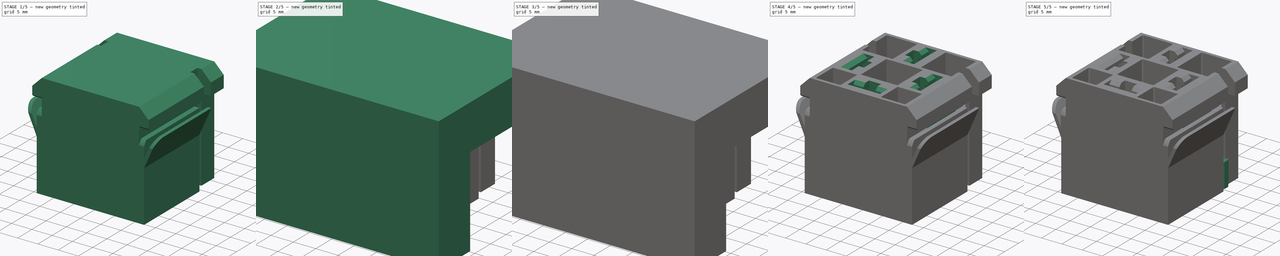
[diagram: build sequence overview — one tinted view per stage of 5, left to right]
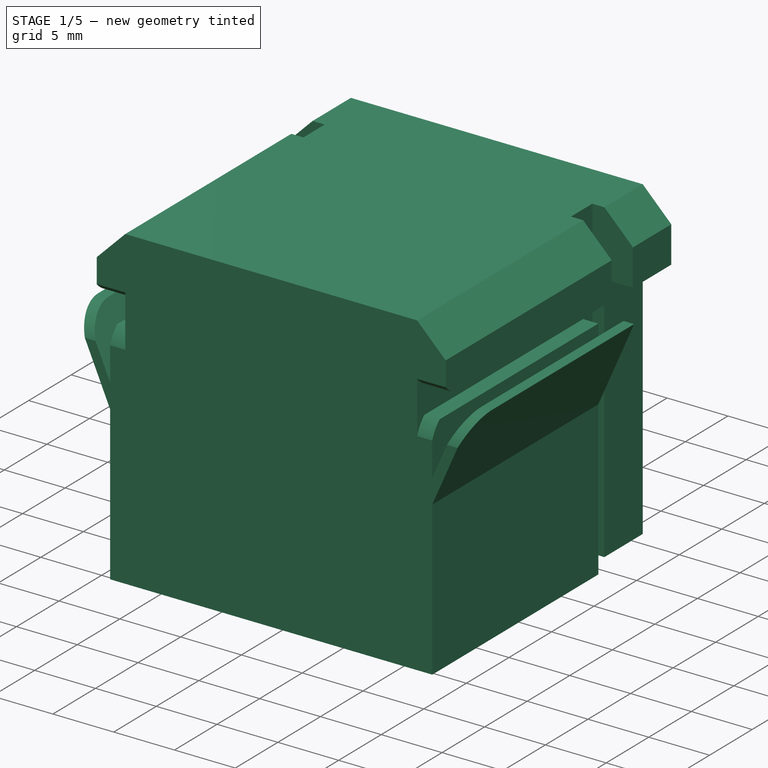
[diagram: stage 1 of 5 — iso view after this stage's code; geometry added in this stage tinted green]
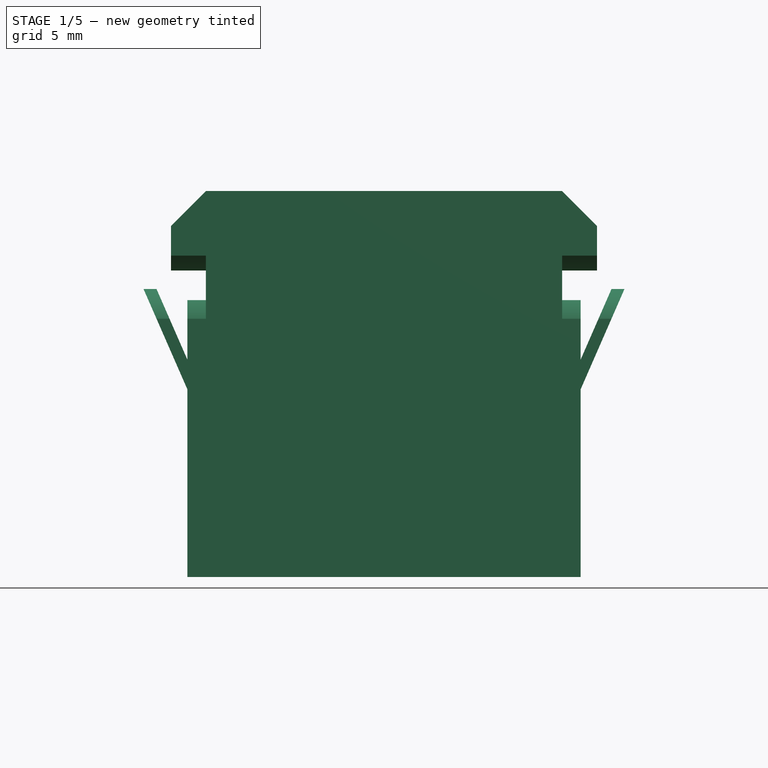
[diagram: stage 1 of 5 — front view after this stage's code; geometry added in this stage tinted green]
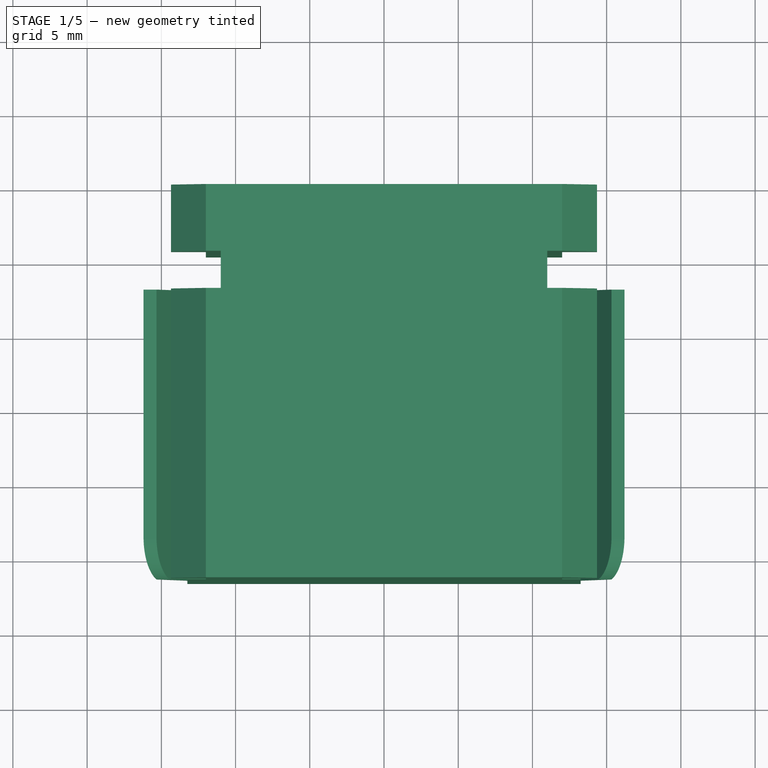
[diagram: stage 1 of 5 — top view after this stage's code; geometry added in this stage tinted green]
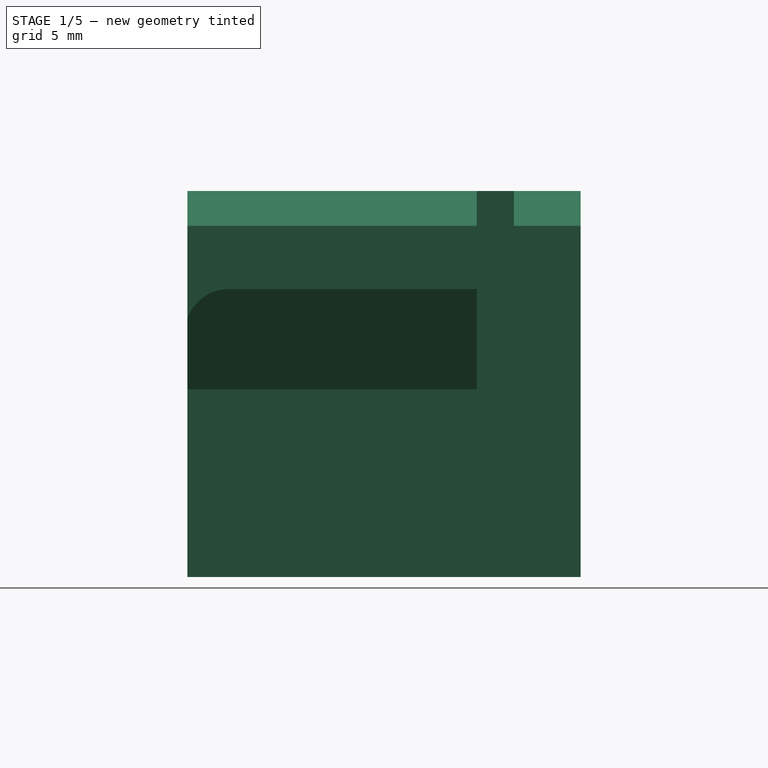
[diagram: stage 1 of 5 — right view after this stage's code; geometry added in this stage tinted green]
FCSTD DOCUMENT  (FreeCAD 1.0R39109 (Git))
Label: RelayBaseHornBrights
License: All rights reserved
LicenseURL: http://en.wikipedia.org/wiki/All_rights_reserved
objects: Sketcher::SketchObject×19, PartDesign::Pocket×8, PartDesign::Body×7, PartDesign::Pad×5, PartDesign::FeatureBase×4, Part::Extrusion×4, Part::MultiFuse×3, PartDesign::Mirrored×2, PartDesign::Plane×1, Part::Cut×1, Part::Compound×1, Part::Fillet×1
note: 107 computed .brp shape members not serialized (recipe doc carries the construction recipe); baked Part::Feature solids carry a one-line shape summary decoded from their .brp

FEATURE [Sketcher::SketchObject] Sketch001
  ArcFitTolerance = 1e-06
  AttachmentSupport = -> [XZ_Plane001]
  FullyConstrained = true
  MakeInternals = false
  MapMode = 5
  Placement = pos=(0,0,0) rot=(1,0,0;1.5708rad)
  sketch-geometry (13):
    g0: LineSegment StartX=0 StartY=0 StartZ=0 EndX=0 EndY=26 EndZ=0
    g1: LineSegment StartX=0 StartY=26 StartZ=0 EndX=12 EndY=26 EndZ=0
    g2: LineSegment StartX=12 StartY=26 StartZ=0 EndX=14.35 EndY=23.65 EndZ=0
    g3: LineSegment StartX=14.35 StartY=23.65 StartZ=0 EndX=14.35 EndY=20.65 EndZ=0
    g4: LineSegment StartX=14.35 StartY=20.65 StartZ=0 EndX=12 EndY=20.65 EndZ=0
    g5: LineSegment StartX=12 StartY=20.65 StartZ=0 EndX=12 EndY=18.65 EndZ=0
    g6: LineSegment StartX=12 StartY=18.65 StartZ=0 EndX=13.25 EndY=18.65 EndZ=0
    g7: LineSegment StartX=13.25 StartY=18.65 StartZ=0 EndX=13.25 EndY=14.65 EndZ=0
    g8: LineSegment StartX=13.25 StartY=14.65 StartZ=0 EndX=15.3259 EndY=19.4 EndZ=0
    g9: LineSegment StartX=15.3259 StartY=19.4 StartZ=0 EndX=16.2 EndY=19.4 EndZ=0
    g10: LineSegment StartX=16.2 StartY=19.4 StartZ=0 EndX=13.25 EndY=12.65 EndZ=0
    g11: LineSegment StartX=13.25 StartY=12.65 StartZ=0 EndX=13.25 EndY=0 EndZ=0
    g12: LineSegment StartX=13.25 StartY=0 StartZ=0 EndX=0 EndY=0 EndZ=0
  constraints (38):
    c: Coincident(g-1,g0)
    c: PointOnObject(g0,g-2)
    c: Coincident(g0,g1)
    c: Horizontal(g1)
    c: Coincident(g1,g2)
    c: Coincident(g2,g3)
    c: Vertical(g3)
    c: Coincident(g3,g4)
    c: Horizontal(g4)
    c: Coincident(g4,g5)
    c: Coincident(g5,g6)
    c: Horizontal(g6)
    c: Coincident(g6,g7)
    c: Vertical(g7)
    c: Coincident(g7,g8)
    c: Coincident(g8,g9)
    c: Horizontal(g9)
    c: Coincident(g9,g10)
    c: Coincident(g10,g11)
    c: Vertical(g11)
    c: Coincident(g11,g12)
    c: Coincident(g12,g0)
    c: Horizontal(g12)
    c: DistanceY(g0,g0) = 26
    c: DistanceX(g12,g12) = 13.25
    c: Vertical(g5)
    c: Distance(g5,g5) = 2
    c: Distance(g3,g3) = 3
    c: DistanceX(g1,g1) = 12
    c: Vertical(g7,g10)
    c: DistanceY(g10,g7) = 2
    c: Parallel(g10,g8)
    c: DistanceX(g0,g5) = 12
    c: Angle(g2,g-1) = 0.785398
    c: DistanceX(g0,g2) = 14.35
    c: DistanceY(g10,g6) = 6
    c: DistanceX(g0,g9) = 16.2
    c: DistanceY(g10,g9) = 6.75
FEATURE [PartDesign::Pad] Pad001  label="StartingShape"
  Direction = (0,-1,2e-16)
  Length = 26.5
  Length2 = 10
  Placement = pos=(0,0,0) rot=(1,0,0;1.5708rad)
  Profile = -> Sketch001
  ReferenceAxis = -> Sketch001 [N_Axis]
  Refine = true
  Suppressed = false
  Type = 0
FEATURE [Sketcher::SketchObject] Sketch
  ArcFitTolerance = 1e-06
  AttachmentSupport = -> [XZ_Plane001]
  ExternalGeometry = -> [Sketch001]
  FullyConstrained = true
  MakeInternals = false
  MapMode = 5
  Placement = pos=(0,0,0) rot=(1,0,0;1.5708rad)
  sketch-geometry (4):
    g0: LineSegment StartX=17.25 StartY=0 StartZ=0 EndX=17.25 EndY=20.65 EndZ=0
    g1: LineSegment StartX=17.25 StartY=20.65 StartZ=0 EndX=12 EndY=20.65 EndZ=0
    g2: LineSegment StartX=12 StartY=20.65 StartZ=0 EndX=12 EndY=0 EndZ=0
    g3: LineSegment StartX=12 StartY=0 StartZ=0 EndX=17.25 EndY=0 EndZ=0
  constraints (12):
    c: Coincident(g0,g1)
    c: Horizontal(g1)
    c: Vertical(g0)
    c: Horizontal(g1,g-4)
    c: DistanceX(g-3,g0) = 4
    c: Vertical(g1,g-5)
    c: Coincident(g2,g1)
    c: PointOnObject(g2,g-1)
    c: Vertical(g2)
    c: Coincident(g3,g2)
    c: PointOnObject(g3,g-1)
    c: Coincident(g0,g3)
FEATURE [PartDesign::Pocket] Pocket  label="FrontPocket"
  BaseFeature = -> Pad001
  Direction = (0,1,-2e-16)
  Length = 7
  Length2 = 5
  Placement = pos=(0,0,0) rot=(1,0,0;1.5708rad)
  Profile = -> Sketch
  ReferenceAxis = -> Sketch [N_Axis]
  Refine = true
  Reversed = true
  Suppressed = false
  Type = 0
FEATURE [Sketcher::SketchObject] Sketch002
  ArcFitTolerance = 1e-06
  FullyConstrained = true
  MakeInternals = false
  MapMode = 5
  Placement = pos=(12,0,0) rot=(0.707107,0,0.707107;3.14159rad)
  sketch-geometry (4):
    g0: LineSegment StartX=0 StartY=7 StartZ=0 EndX=0 EndY=4.5 EndZ=0
    g1: LineSegment StartX=0 StartY=4.5 StartZ=0 EndX=30 EndY=4.5 EndZ=0
    g2: LineSegment StartX=30 StartY=4.5 StartZ=0 EndX=30 EndY=7 EndZ=0
    g3: LineSegment StartX=30 StartY=7 StartZ=0 EndX=0 EndY=7 EndZ=0
  constraints (12):
    c: Coincident(g0,g1)
    c: Coincident(g1,g2)
    c: Coincident(g2,g3)
    c: Coincident(g3,g0)
    c: Vertical(g0)
    c: Vertical(g2)
    c: Horizontal(g1)
    c: Horizontal(g3)
    c: PointOnObject(g0,g-2)
    c: DistanceX(g1,g1) = 30
    c: Distance(g2,g2) = 2.5
    c: Horizontal(g2,g-3)
FEATURE [PartDesign::Pocket] Pocket001  label="FingerPocket"
  BaseFeature = -> Pocket
  Direction = (-1,0,2e-16)
  Length = 1
  Length2 = 5
  Placement = pos=(0,0,0) rot=(1,0,0;1.5708rad)
  Profile = -> Sketch002
  ReferenceAxis = -> Sketch002 [N_Axis]
  Refine = true
  Suppressed = false
  Type = 4
FEATURE [PartDesign::Plane] DatumPlane
  AttachmentOffset = pos=(0,0,-6.75) rot=(0,0,1;0rad)
  AttachmentSupport = -> [Pocket001]
  Length = 60
  MapMode = 5
  Placement = pos=(0,-6.75,-1.5e-15) rot=(-1,0,0;1.5708rad)
  ResizeMode = 0
  Width = 60
FEATURE [Sketcher::SketchObject] Sketch004
  ArcFitTolerance = 1e-06
  AttachmentOffset = pos=(0,0,20) rot=(0,0,1;0rad)
  AttachmentSupport = -> [YZ_Plane001]
  FullyConstrained = true
  MakeInternals = false
  MapMode = 5
  Placement = pos=(20,0,0) rot=(0.57735,0.57735,0.57735;2.0944rad)
  sketch-geometry (4):
    g0: ArcOfCircle CenterX=-24.2639 CenterY=23.65 CenterZ=0 NormalX=0 NormalY=0 NormalZ=1 AngleXU=0 Radius=3 StartAngle=3.87132 EndAngle=4.71239
    g1: ArcOfCircle CenterX=-23.6716 CenterY=16.4 CenterZ=0 NormalX=0 NormalY=0 NormalZ=1 AngleXU=0 Radius=3 StartAngle=1.5708 EndAngle=2.80176
    g2: LineSegment StartX=-26.5 StartY=21.65 StartZ=0 EndX=-26.5 EndY=17.4 EndZ=0
    g3: LineSegment StartX=-23.6716 StartY=19.4 StartZ=0 EndX=-24.2639 EndY=20.65 EndZ=0
  constraints (14):
    c: PointOnObject(g0,g-4)
    c: PointOnObject(g0,g-5)
    c: Vertical(g0,g0)
    c: Radius(g0) = 3
    c: PointOnObject(g1,g-3)
    c: PointOnObject(g1,g-6)
    c: Radius(g1) = 3
    c: Vertical(g1,g1)
    c: Distance(g-6,g1) = 2
    c: DistanceY(g-5,g0) = 1
    c: Coincident(g2,g0)
    c: Coincident(g2,g1)
    c: Coincident(g3,g1)
    c: Coincident(g3,g0)
FEATURE [PartDesign::Pocket] Pocket002  label="SideBevelPocket"
  BaseFeature = -> Pocket001
  Direction = (-1,0,0)
  Length = 8
  Length2 = 5
  Placement = pos=(0,0,0) rot=(1,0,0;1.5708rad)
  Profile = -> Sketch004
  ReferenceAxis = -> Sketch004 [N_Axis]
  Refine = true
  Suppressed = false
  Type = 0
FEATURE [PartDesign::Mirrored] Mirrored
  BaseFeature = -> Pocket002
  MirrorPlane = -> YZ_Plane001
  Placement = pos=(0,0,0) rot=(1,0,0;1.5708rad)
  Refine = true
  Suppressed = false
  TransformMode = 1
FEATURE [Sketcher::SketchObject] Sketch019  label="FillBottomPins"
  ArcFitTolerance = 1e-06
  FullyConstrained = true
  MakeInternals = false
  Placement = pos=(0,0,0) rot=(1,0,0;3.14159rad)
  sketch-geometry (32):
    g0: LineSegment StartX=-11.15 StartY=18.65 StartZ=0 EndX=-11.15 EndY=10.65 EndZ=0
    g1: LineSegment StartX=-11.15 StartY=10.65 StartZ=0 EndX=-6.15 EndY=10.65 EndZ=0
    g2: LineSegment StartX=-6.15 StartY=10.65 StartZ=0 EndX=-6.15 EndY=18.65 EndZ=0
    g3: LineSegment StartX=-6.15 StartY=18.65 StartZ=0 EndX=-11.15 EndY=18.65 EndZ=0
    g4: LineSegment StartX=-4 StartY=25.85 StartZ=0 EndX=-4 EndY=20.85 EndZ=0
    g5: LineSegment StartX=-4 StartY=20.85 StartZ=0 EndX=4 EndY=20.85 EndZ=0
    g6: LineSegment StartX=4 StartY=20.85 StartZ=0 EndX=4 EndY=25.85 EndZ=0
    g7: LineSegment StartX=4 StartY=25.85 StartZ=0 EndX=-4 EndY=25.85 EndZ=0
    g8: LineSegment StartX=6.15 StartY=18.65 StartZ=0 EndX=6.15 EndY=10.65 EndZ=0
    g9: LineSegment StartX=6.15 StartY=10.65 StartZ=0 EndX=11.15 EndY=10.65 EndZ=0
    g10: LineSegment StartX=11.15 StartY=10.65 StartZ=0 EndX=11.15 EndY=18.65 EndZ=0
    g11: LineSegment StartX=11.15 StartY=18.65 StartZ=0 EndX=6.15 EndY=18.65 EndZ=0
    g12: LineSegment StartX=-2.25 StartY=9 StartZ=0 EndX=-2.25 EndY=1 EndZ=0
    g13: LineSegment StartX=-2.25 StartY=1 StartZ=0 EndX=2.75 EndY=1 EndZ=0
    g14: LineSegment StartX=2.75 StartY=1 StartZ=0 EndX=2.75 EndY=9 EndZ=0
    g15: LineSegment StartX=2.75 StartY=9 StartZ=0 EndX=-2.25 EndY=9 EndZ=0
    g16: LineSegment StartX=-12.15 StartY=19.65 StartZ=0 EndX=-12.15 EndY=9.65 EndZ=0
    g17: LineSegment StartX=-12.15 StartY=9.65 StartZ=0 EndX=-5.15 EndY=9.65 EndZ=0
    g18: LineSegment StartX=-5.15 StartY=9.65 StartZ=0 EndX=-5.15 EndY=19.65 EndZ=0
    g19: LineSegment StartX=-5.15 StartY=19.65 StartZ=0 EndX=-12.15 EndY=19.65 EndZ=0
    g20: LineSegment StartX=-5 StartY=26.5 StartZ=0 EndX=-5 EndY=19.5 EndZ=0
    g21: LineSegment StartX=-5 StartY=19.5 StartZ=0 EndX=5 EndY=19.5 EndZ=0
    g22: LineSegment StartX=5 StartY=19.5 StartZ=0 EndX=5 EndY=26.5 EndZ=0
    g23: LineSegment StartX=5 StartY=26.5 StartZ=0 EndX=-5 EndY=26.5 EndZ=0
    g24: LineSegment StartX=12.15 StartY=19.65 StartZ=0 EndX=5.15 EndY=19.65 EndZ=0
    g25: LineSegment StartX=5.15 StartY=19.65 StartZ=0 EndX=5.15 EndY=9.65 EndZ=0
    g26: LineSegment StartX=5.15 StartY=9.65 StartZ=0 EndX=12.15 EndY=9.65 EndZ=0
    g27: LineSegment StartX=12.15 StartY=9.65 StartZ=0 EndX=12.15 EndY=19.65 EndZ=0
    g28: LineSegment StartX=3.75 StartY=10 StartZ=0 EndX=-3.25 EndY=10 EndZ=0
    g29: LineSegment StartX=-3.25 StartY=10 StartZ=0 EndX=-3.25 EndY=0 EndZ=0
    g30: LineSegment StartX=-3.25 StartY=0 StartZ=0 EndX=3.75 EndY=0 EndZ=0
    g31: LineSegment StartX=3.75 StartY=0 StartZ=0 EndX=3.75 EndY=10 EndZ=0
  constraints (94):
    c: Coincident(g0,g1)
    c: Coincident(g1,g2)
    c: Coincident(g2,g3)
    c: Coincident(g3,g0)
    c: Vertical(g0)
    c: Vertical(g2)
    c: Horizontal(g1)
    c: Horizontal(g3)
    c: DistanceY(g2,g2) = 8
    c: DistanceX(g1,g1) = 5
    c: Coincident(g4,g5)
    c: Coincident(g5,g6)
    c: Coincident(g6,g7)
    c: Coincident(g7,g4)
    c: Vertical(g4)
    c: Vertical(g6)
    c: Horizontal(g7)
    c: Coincident(g8,g9)
    c: Coincident(g9,g10)
    c: Coincident(g10,g11)
    c: Coincident(g11,g8)
    c: Vertical(g8)
    c: Vertical(g10)
    c: Horizontal(g9)
    c: Horizontal(g11)
    c: Coincident(g12,g13)
    c: Coincident(g13,g14)
    c: Coincident(g14,g15)
    c: Coincident(g15,g12)
    c: Vertical(g12)
    c: Vertical(g14)
    c: Horizontal(g13)
    c: Horizontal(g15)
    c: Equal(g12,g8)
    c: Equal(g8,g5)
    c: Equal(g5,g2)
    c: Equal(g15,g11)
    c: Equal(g11,g4)
    c: Equal(g4,g1)
    c: Symmetric(g2,g8,g-2)
    c: DistanceX(g2,g-1) = 6.15
    c: DistanceY(g-1,g12) = 1
    c: DistanceX(g1,g12) = 3.9
    c: DistanceY(g12,g1) = 1.65
    c: Symmetric(g4,g5,g-2)
    c: DistanceY(g2,g4) = 2.2
    c: Coincident(g16,g17)
    c: Coincident(g17,g18)
    c: Coincident(g18,g19)
    c: Coincident(g19,g16)
    c: Vertical(g16)
    c: Vertical(g18)
    c: Horizontal(g17)
    c: Horizontal(g19)
    c: DistanceX(g19,g19) = 7
    c: DistanceY(g18,g18) = 10
    c: DistanceY(g16,g0) = 1
    c: DistanceX(g16,g0) = 1
    c: Coincident(g20,g21)
    c: Coincident(g21,g22)
    c: Coincident(g22,g23)
    c: Coincident(g23,g20)
    c: Vertical(g20)
    c: Vertical(g22)
    c: Horizontal(g21)
    c: Horizontal(g23)
    c: Coincident(g24,g25)
    c: Coincident(g25,g26)
    c: Coincident(g26,g27)
    c: Coincident(g27,g24)
    c: Horizontal(g24)
    c: Horizontal(g26)
    c: Vertical(g25)
    c: Vertical(g27)
    c: Coincident(g28,g29)
    c: Coincident(g29,g30)
    c: Coincident(g30,g31)
    c: Coincident(g31,g28)
    c: Horizontal(g28)
    c: Horizontal(g30)
    c: Vertical(g29)
    c: Vertical(g31)
    c: Equal(g28,g24)
    c: Equal(g24,g20)
    c: Equal(g20,g19)
    c: Equal(g25,g21)
    c: Equal(g21,g29)
    c: Equal(g29,g18)
    c: DistanceY(g29,g12) = 1
    c: DistanceX(g29,g12) = 1
    c: DistanceY(g25,g8) = 1
    c: DistanceX(g25,g8) = 1
    c: DistanceY(g21,g5) = 1.35
    c: DistanceX(g5,g21) = 1
FEATURE [Part::Extrusion] Extrude003  label="FilledPinBottom"
  Base = -> Sketch019
  Dir = (0,0,-1)
  DirMode = 2
  FaceMakerClass = Part::FaceMakerBullseye
  FaceMakerMode = 3
  LengthFwd = 4
  LengthRev = 0
  Reversed = true
  Solid = true
  Symmetric = false
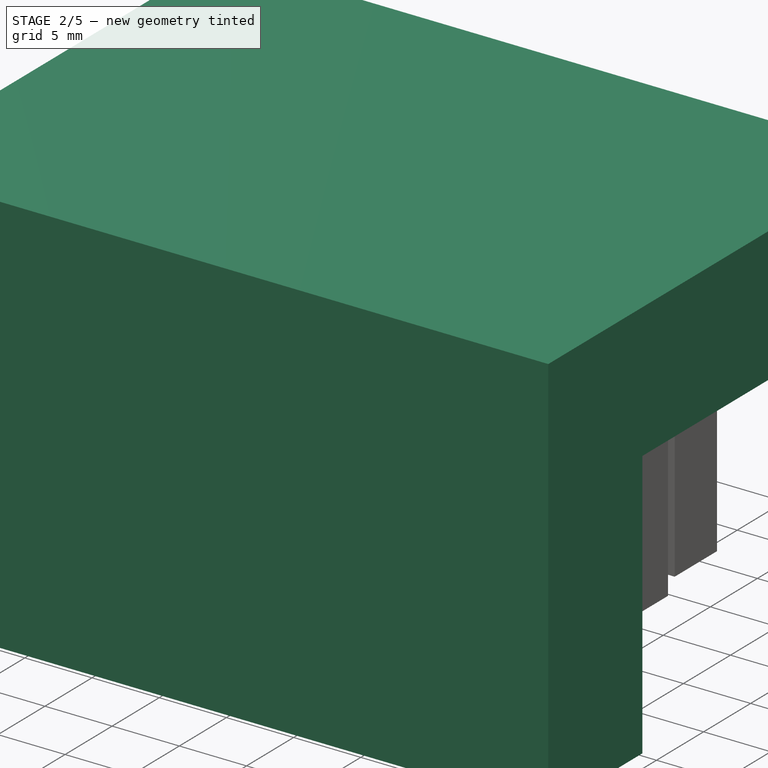
[diagram: stage 2 of 5 — iso view after this stage's code; geometry added in this stage tinted green]
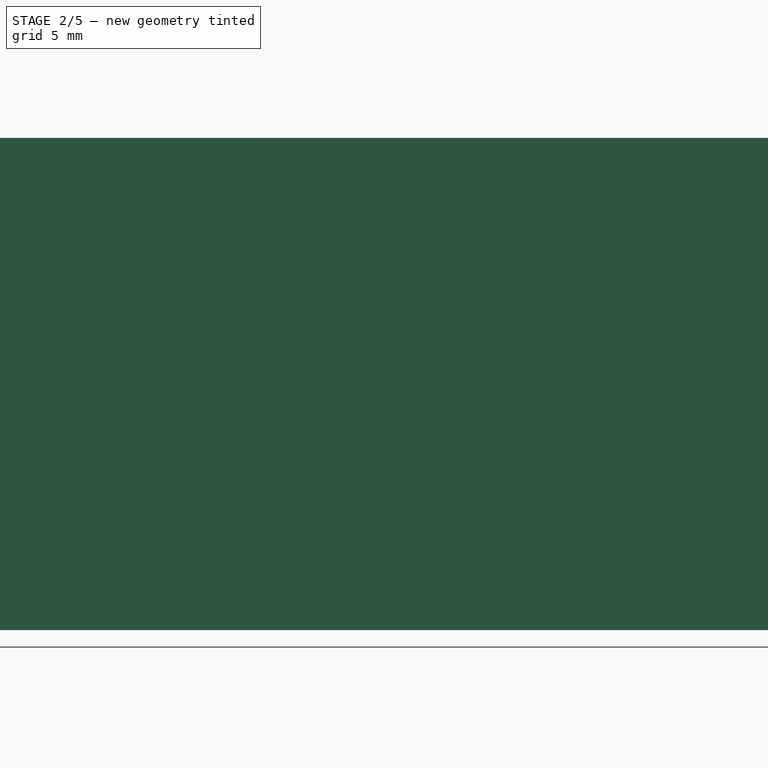
[diagram: stage 2 of 5 — front view after this stage's code; geometry added in this stage tinted green]
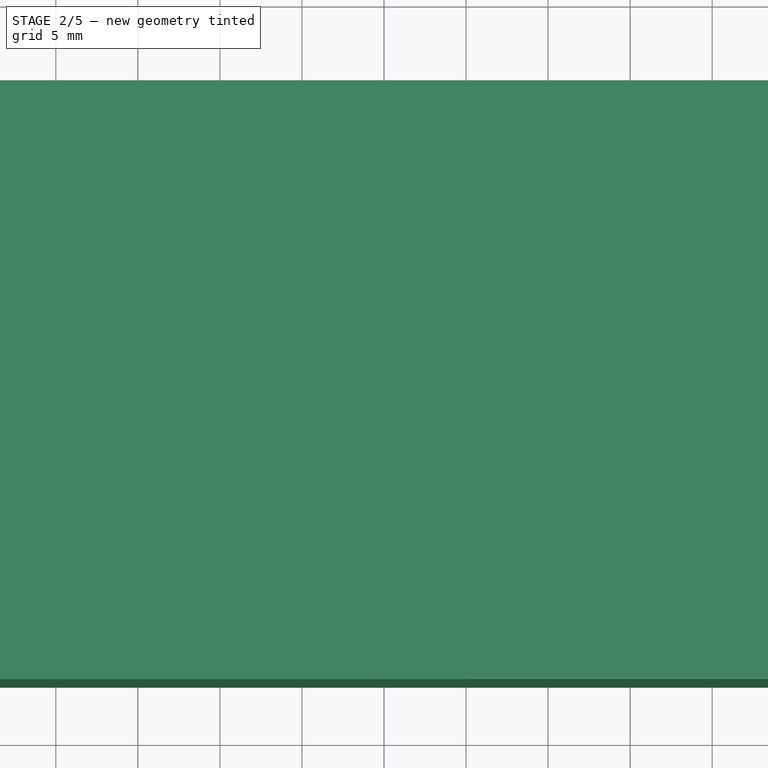
[diagram: stage 2 of 5 — top view after this stage's code; geometry added in this stage tinted green]
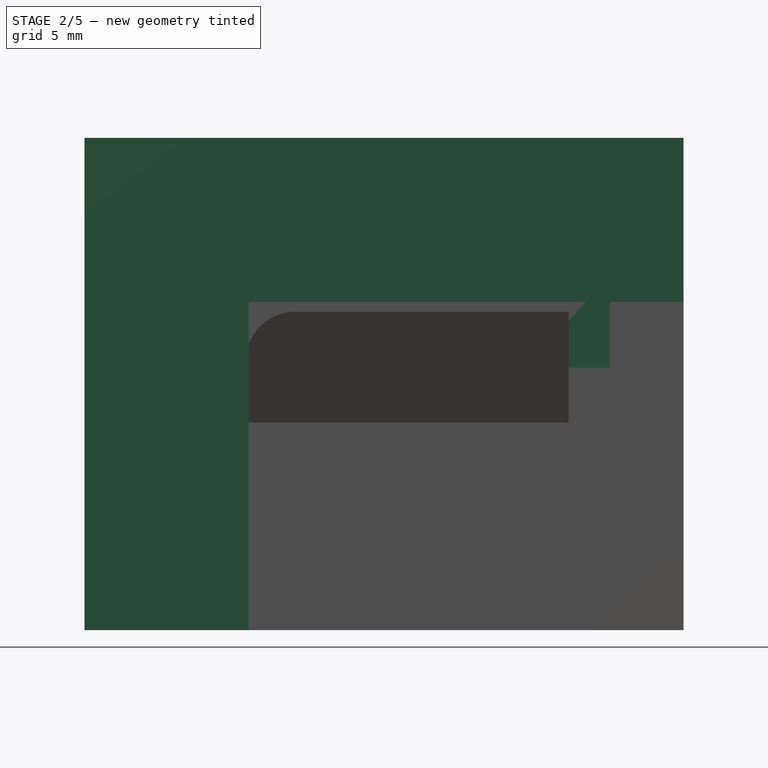
[diagram: stage 2 of 5 — right view after this stage's code; geometry added in this stage tinted green]
FEATURE [Sketcher::SketchObject] Sketch005
  ArcFitTolerance = 1e-06
  AttachmentSupport = -> [Mirrored]
  ExternalGeometry = -> [Mirrored]
  FullyConstrained = true
  MakeInternals = false
  MapMode = 5
  Placement = pos=(0,1.64e-14,26) rot=(0,0,1;3.14159rad)
  sketch-geometry (20):
    g0: LineSegment StartX=-11 StartY=9.45 StartZ=0 EndX=-11 EndY=1.25 EndZ=0
    g1: LineSegment StartX=-11 StartY=1.25 StartZ=0 EndX=-3.5 EndY=1.25 EndZ=0
    g2: LineSegment StartX=-3.5 StartY=1.25 StartZ=0 EndX=-3.5 EndY=9.45 EndZ=0
    g3: LineSegment StartX=-3.5 StartY=9.45 StartZ=0 EndX=-11 EndY=9.45 EndZ=0
    g4: LineSegment StartX=3.5 StartY=9.45 StartZ=0 EndX=3.5 EndY=1.25 EndZ=0
    g5: LineSegment StartX=3.5 StartY=1.25 StartZ=0 EndX=11 EndY=1.25 EndZ=0
    g6: LineSegment StartX=11 StartY=1.25 StartZ=0 EndX=11 EndY=9.45 EndZ=0
    g7: LineSegment StartX=11 StartY=9.45 StartZ=0 EndX=3.5 EndY=9.45 EndZ=0
    g8: LineSegment StartX=-11 StartY=25.75 StartZ=0 EndX=-11 EndY=19.75 EndZ=0
    g9: LineSegment StartX=-11 StartY=19.75 StartZ=0 EndX=-5 EndY=19.75 EndZ=0
    g10: LineSegment StartX=-5 StartY=19.75 StartZ=0 EndX=-5 EndY=25.75 EndZ=0
    g11: LineSegment StartX=-5 StartY=25.75 StartZ=0 EndX=-11 EndY=25.75 EndZ=0
    g12: LineSegment StartX=5 StartY=25.75 StartZ=0 EndX=5 EndY=19.75 EndZ=0
    g13: LineSegment StartX=5 StartY=19.75 StartZ=0 EndX=11 EndY=19.75 EndZ=0
    g14: LineSegment StartX=11 StartY=19.75 StartZ=0 EndX=11 EndY=25.75 EndZ=0
    g15: LineSegment StartX=11 StartY=25.75 StartZ=0 EndX=5 EndY=25.75 EndZ=0
    g16: LineSegment StartX=-4.5 StartY=19.2 StartZ=0 EndX=-4.5 EndY=10.2 EndZ=0
    g17: LineSegment StartX=-4.5 StartY=10.2 StartZ=0 EndX=4.5 EndY=10.2 EndZ=0
    g18: LineSegment StartX=4.5 StartY=10.2 StartZ=0 EndX=4.5 EndY=19.2 EndZ=0
    g19: LineSegment StartX=4.5 StartY=19.2 StartZ=0 EndX=-4.5 EndY=19.2 EndZ=0
  constraints (59):
    c: Coincident(g0,g1)
    c: Coincident(g1,g2)
    c: Coincident(g2,g3)
    c: Coincident(g3,g0)
    c: Vertical(g0)
    c: Vertical(g2)
    c: Horizontal(g1)
    c: Horizontal(g3)
    c: Coincident(g4,g5)
    c: Coincident(g5,g6)
    c: Coincident(g6,g7)
    c: Coincident(g7,g4)
    c: Vertical(g4)
    c: Vertical(g6)
    c: Horizontal(g5)
    c: Horizontal(g7)
    c: Distance(g1,g1) = 7.5
    c: Equal(g5,g1)
    c: Distance(g0,g0) = 8.2
    c: Equal(g4,g0)
    c: Horizontal(g4,g1)
    c: Vertical(g0,g-6)
    c: Vertical(g5,g-7)
    c: Coincident(g8,g9)
    c: Coincident(g9,g10)
    c: Coincident(g10,g11)
    c: Coincident(g11,g8)
    c: Vertical(g8)
    c: Vertical(g10)
    c: Horizontal(g9)
    c: Horizontal(g11)
    c: Coincident(g12,g13)
    c: Coincident(g13,g14)
    c: Coincident(g14,g15)
    c: Coincident(g15,g12)
    c: Vertical(g12)
    c: Vertical(g14)
    c: Horizontal(g13)
    c: Horizontal(g15)
    c: Distance(g8,g8) = 6
    c: Distance(g11,g11) = 6
    c: Equal(g12,g8)
    c: Equal(g15,g11)
    c: Horizontal(g10,g12)
    c: Vertical(g8,g0)
    c: Vertical(g13,g6)
    c: DistanceY(g-3,g0) = 1.25
    c: DistanceY(g8,g-5) = 0.75
    c: Coincident(g16,g17)
    c: Coincident(g17,g18)
    c: Coincident(g18,g19)
    c: Coincident(g19,g16)
    c: Vertical(g16)
    c: Vertical(g18)
    c: Horizontal(g19)
    c: DistanceX(g19,g19) = 9
    c: Equal(g18,g19)
    c: Symmetric(g16,g17,g-2)
    c: DistanceY(g2,g16) = 0.75
FEATURE [PartDesign::Pocket] Pocket003  label="TopHoles"
  BaseFeature = -> Mirrored
  Direction = (0,0,-1)
  Length = 10
  Length2 = 5
  Placement = pos=(0,0,0) rot=(1,0,0;1.5708rad)
  Profile = -> Sketch005
  ReferenceAxis = -> Sketch005 [N_Axis]
  Refine = true
  Suppressed = false
  Type = 0
FEATURE [PartDesign::Body] Body006  label="Pin4"
  AllowCompound = false
  Group = -> [Clone003]
  Origin = -> Origin006
  Placement = pos=(-5,-19.85,0) rot=(0,0,1;0rad)
  Tip = -> Clone003
FEATURE [Sketcher::SketchObject] Sketch012  label="ReferenceLines"
  ArcFitTolerance = 1e-06
  FullyConstrained = false
  MakeInternals = false
  sketch-geometry (4):
    g0: LineSegment StartX=1e-16 StartY=-0.647072 StartZ=0 EndX=1e-16 EndY=-23.2471 EndZ=0
    g1: LineSegment StartX=-8.9 StartY=-13.7118 StartZ=0 EndX=8.9 EndY=-13.7118 EndZ=0
    g2: LineSegment StartX=-0.981675 StartY=-4.64861 StartZ=0 EndX=-0.981675 EndY=-14.1486 EndZ=0
    g3: LineSegment StartX=-16.9846 StartY=-14.1486 StartZ=0 EndX=17.4241 EndY=-14.1486 EndZ=0
  constraints (9):
    c: Vertical(g0)
    c: DistanceY(g0,g0) = 22.6
    c: DistanceX(g1,g1) = 17.8
    c: Symmetric(g1,g1,g0)
    c: PointOnObject(g0,g-2)
    c: Vertical(g2)
    c: DistanceY(g2,g2) = 9.5
    c: Horizontal(g3)
    c: PointOnObject(g2,g3)
FEATURE [Sketcher::SketchObject] Sketch014  label="ReferenceDimensions"
  ArcFitTolerance = 1e-06
  AttachmentSupport = -> [Mirrored]
  ExternalGeometry = -> [Mirrored]
  FullyConstrained = true
  MakeInternals = false
  MapMode = 5
  Placement = pos=(0,1.64e-14,26) rot=(0,0,1;3.14159rad)
  sketch-geometry (20):
    g0: LineSegment StartX=-11 StartY=9.45 StartZ=0 EndX=-11 EndY=0.75 EndZ=0
    g1: LineSegment StartX=-11 StartY=0.75 StartZ=0 EndX=-3.5 EndY=0.75 EndZ=0
    g2: LineSegment StartX=-3.5 StartY=0.75 StartZ=0 EndX=-3.5 EndY=9.45 EndZ=0
    g3: LineSegment StartX=-3.5 StartY=9.45 StartZ=0 EndX=-11 EndY=9.45 EndZ=0
    g4: LineSegment StartX=3.5 StartY=9.45 StartZ=0 EndX=3.5 EndY=0.75 EndZ=0
    g5: LineSegment StartX=3.5 StartY=0.75 StartZ=0 EndX=11 EndY=0.75 EndZ=0
    g6: LineSegment StartX=11 StartY=0.75 StartZ=0 EndX=11 EndY=9.45 EndZ=0
    g7: LineSegment StartX=11 StartY=9.45 StartZ=0 EndX=3.5 EndY=9.45 EndZ=0
    g8: LineSegment StartX=-11 StartY=25.75 StartZ=0 EndX=-11 EndY=19.75 EndZ=0
    g9: LineSegment StartX=-11 StartY=19.75 StartZ=0 EndX=-5 EndY=19.75 EndZ=0
    g10: LineSegment StartX=-5 StartY=19.75 StartZ=0 EndX=-5 EndY=25.75 EndZ=0
    g11: LineSegment StartX=-5 StartY=25.75 StartZ=0 EndX=-11 EndY=25.75 EndZ=0
    g12: LineSegment StartX=5 StartY=25.75 StartZ=0 EndX=5 EndY=19.75 EndZ=0
    g13: LineSegment StartX=5 StartY=19.75 StartZ=0 EndX=11 EndY=19.75 EndZ=0
    g14: LineSegment StartX=11 StartY=19.75 StartZ=0 EndX=11 EndY=25.75 EndZ=0
    g15: LineSegment StartX=11 StartY=25.75 StartZ=0 EndX=5 EndY=25.75 EndZ=0
    g16: LineSegment StartX=-4.5 StartY=19.2 StartZ=0 EndX=-4.5 EndY=10.2 EndZ=0
    g17: LineSegment StartX=-4.5 StartY=10.2 StartZ=0 EndX=4.5 EndY=10.2 EndZ=0
    g18: LineSegment StartX=4.5 StartY=10.2 StartZ=0 EndX=4.5 EndY=19.2 EndZ=0
    g19: LineSegment StartX=4.5 StartY=19.2 StartZ=0 EndX=-4.5 EndY=19.2 EndZ=0
  constraints (59):
    c: Coincident(g0,g1)
    c: Coincident(g1,g2)
    c: Coincident(g2,g3)
    c: Coincident(g3,g0)
    c: Vertical(g0)
    c: Vertical(g2)
    c: Horizontal(g1)
    c: Horizontal(g3)
    c: Coincident(g4,g5)
    c: Coincident(g5,g6)
    c: Coincident(g6,g7)
    c: Coincident(g7,g4)
    c: Vertical(g4)
    c: Vertical(g6)
    c: Horizontal(g5)
    c: Horizontal(g7)
    c: Distance(g1,g1) = 7.5
    c: Equal(g5,g1)
    c: Distance(g0,g0) = 8.7
    c: Equal(g4,g0)
    c: Horizontal(g4,g1)
    c: Vertical(g0,g-6)
    c: Vertical(g5,g-7)
    c: Coincident(g8,g9)
    c: Coincident(g9,g10)
    c: Coincident(g10,g11)
    c: Coincident(g11,g8)
    c: Vertical(g8)
    c: Vertical(g10)
    c: Horizontal(g9)
    c: Horizontal(g11)
    c: Coincident(g12,g13)
    c: Coincident(g13,g14)
    c: Coincident(g14,g15)
    c: Coincident(g15,g12)
    c: Vertical(g12)
    c: Vertical(g14)
    c: Horizontal(g13)
    c: Horizontal(g15)
    c: Distance(g8,g8) = 6
    c: Distance(g11,g11) = 6
    c: Equal(g12,g8)
    c: Equal(g15,g11)
    c: Horizontal(g10,g12)
    c: Vertical(g8,g0)
    c: Vertical(g13,g6)
    c: DistanceY(g-3,g0) = 0.75
    c: DistanceY(g8,g-5) = 0.75
    c: Coincident(g16,g17)
    c: Coincident(g17,g18)
    c: Coincident(g18,g19)
    c: Coincident(g19,g16)
    c: Vertical(g16)
    c: Vertical(g18)
    c: Horizontal(g19)
    c: DistanceX(g19,g19) = 9
    c: Equal(g18,g19)
    c: Symmetric(g16,g17,g-2)
    c: DistanceY(g2,g16) = 0.75
FEATURE [Sketcher::SketchObject] Sketch015  label="PinHoles"
  ArcFitTolerance = 1e-06
  AttachmentSupport = -> [XY_Plane001]
  FullyConstrained = true
  MakeInternals = false
  MapMode = 5
  sketch-geometry (16):
    g0: LineSegment StartX=3.4 StartY=-0.4 StartZ=0 EndX=-3.1 EndY=-0.4 EndZ=0
    g1: LineSegment StartX=-3.1 StartY=-0.4 StartZ=0 EndX=-3.1 EndY=-9.65 EndZ=0
    g2: LineSegment StartX=-3.1 StartY=-9.65 StartZ=0 EndX=3.4 EndY=-9.65 EndZ=0
    g3: LineSegment StartX=3.4 StartY=-9.65 StartZ=0 EndX=3.4 EndY=-0.4 EndZ=0
    g4: LineSegment StartX=-5.4 StartY=-9.95 StartZ=0 EndX=-11.9 EndY=-9.95 EndZ=0
    g5: LineSegment StartX=-11.9 StartY=-9.95 StartZ=0 EndX=-11.9 EndY=-19.2 EndZ=0
    g6: LineSegment StartX=-11.9 StartY=-19.2 StartZ=0 EndX=-5.4 EndY=-19.2 EndZ=0
    g7: LineSegment StartX=-5.4 StartY=-19.2 StartZ=0 EndX=-5.4 EndY=-9.95 EndZ=0
    g8: LineSegment StartX=4.625 StartY=-19.95 StartZ=0 EndX=-4.625 EndY=-19.95 EndZ=0
    g9: LineSegment StartX=-4.625 StartY=-19.95 StartZ=0 EndX=-4.625 EndY=-26.45 EndZ=0
    g10: LineSegment StartX=-4.625 StartY=-26.45 StartZ=0 EndX=4.625 EndY=-26.45 EndZ=0
    g11: LineSegment StartX=4.625 StartY=-26.45 StartZ=0 EndX=4.625 EndY=-19.95 EndZ=0
    g12: LineSegment StartX=11.9 StartY=-9.95 StartZ=0 EndX=5.4 EndY=-9.95 EndZ=0
    g13: LineSegment StartX=5.4 StartY=-9.95 StartZ=0 EndX=5.4 EndY=-19.2 EndZ=0
    g14: LineSegment StartX=5.4 StartY=-19.2 StartZ=0 EndX=11.9 EndY=-19.2 EndZ=0
    g15: LineSegment StartX=11.9 StartY=-19.2 StartZ=0 EndX=11.9 EndY=-9.95 EndZ=0
  constraints (46):
    c: Coincident(g0,g1)
    c: Coincident(g1,g2)
    c: Coincident(g2,g3)
    c: Coincident(g3,g0)
    c: Horizontal(g0)
    c: Horizontal(g2)
    c: Vertical(g1)
    c: Vertical(g3)
    c: Coincident(g4,g5)
    c: Coincident(g5,g6)
    c: Coincident(g6,g7)
    c: Coincident(g7,g4)
    c: Horizontal(g4)
    c: Horizontal(g6)
    c: Vertical(g5)
    c: Vertical(g7)
    c: Coincident(g8,g9)
    c: Coincident(g9,g10)
    c: Coincident(g10,g11)
    c: Coincident(g11,g8)
    c: Horizontal(g10)
    c: Vertical(g9)
    c: Vertical(g11)
    c: Coincident(g12,g13)
    c: Coincident(g13,g14)
    c: Coincident(g14,g15)
    c: Coincident(g15,g12)
    c: Horizontal(g12)
    c: Horizontal(g14)
    c: Vertical(g13)
    c: Vertical(g15)
    c: DistanceX(g0,g0) = 6.5
    c: DistanceY(g3,g3) = 9.25
    c: Equal(g15,g8)
    c: Equal(g8,g7)
    c: Equal(g7,g3)
    c: Equal(g12,g4)
    c: Equal(g4,g11)
    c: Equal(g11,g0)
    c: DistanceY(g0,g-1) = 0.4
    c: DistanceX(g2,g12) = 2
    c: DistanceY(g12,g2) = 0.3
    c: Symmetric(g12,g4,g-2)
    c: DistanceY(g8,g13) = 0.75
    c: Symmetric(g8,g8,g-2)
    c: Distance(g12,g-2) = 5.4
FEATURE [PartDesign::Pocket] Pocket007  label="PinHolePockets"
  BaseFeature = -> Pocket003
  Direction = (0,0,-1)
  Length = 5
  Length2 = 5
  Placement = pos=(0,0,0) rot=(1,0,0;1.5708rad)
  Profile = -> Sketch015
  ReferenceAxis = -> Sketch015 [N_Axis]
  Refine = true
  Reversed = true
  Suppressed = false
  Type = 1
FEATURE [Sketcher::SketchObject] Sketch016  label="CleanUpSideEdge"
  ArcFitTolerance = 1e-06
  FullyConstrained = true
  MakeInternals = false
  sketch-geometry (4):
    g0: LineSegment StartX=-25 StartY=-26.5 StartZ=0 EndX=-25 EndY=-36.5 EndZ=0
    g1: LineSegment StartX=-25 StartY=-36.5 StartZ=0 EndX=25 EndY=-36.5 EndZ=0
    g2: LineSegment StartX=25 StartY=-36.5 StartZ=0 EndX=25 EndY=-26.5 EndZ=0
    g3: LineSegment StartX=25 StartY=-26.5 StartZ=0 EndX=-25 EndY=-26.5 EndZ=0
  constraints (11):
    c: Coincident(g0,g1)
    c: Coincident(g1,g2)
    c: Coincident(g2,g3)
    c: Coincident(g3,g0)
    c: Vertical(g0)
    c: Vertical(g2)
    c: Horizontal(g1)
    c: Symmetric(g2,g0,g-2)
    c: DistanceX(g1,g1) = 50
    c: DistanceY(g0,g0) = 10
    c: DistanceY(g0,g-1) = 26.5
FEATURE [Sketcher::SketchObject] Sketch017  label="CleanUpAngle"
  ArcFitTolerance = 1e-06
  FullyConstrained = true
  MakeInternals = false
  Placement = pos=(0,0,0) rot=(1,0,0;1.5708rad)
  sketch-geometry (8):
    g0: LineSegment StartX=-18 StartY=20 StartZ=0 EndX=-12 EndY=26 EndZ=0
    g1: LineSegment StartX=-12 StartY=26 StartZ=0 EndX=12 EndY=26 EndZ=0
    g2: LineSegment StartX=12 StartY=26 StartZ=0 EndX=18 EndY=20 EndZ=0
    g3: LineSegment StartX=18 StartY=20 StartZ=0 EndX=25 EndY=20 EndZ=0
    g4: LineSegment StartX=25 StartY=20 StartZ=0 EndX=25 EndY=30 EndZ=0
    g5: LineSegment StartX=25 StartY=30 StartZ=0 EndX=-25 EndY=30 EndZ=0
    g6: LineSegment StartX=-25 StartY=30 StartZ=0 EndX=-25 EndY=20 EndZ=0
    g7: LineSegment StartX=-25 StartY=20 StartZ=0 EndX=-18 EndY=20 EndZ=0
  constraints (22):
    c: Coincident(g1,g0)
    c: Coincident(g2,g1)
    c: Coincident(g3,g2)
    c: Horizontal(g3)
    c: Coincident(g4,g3)
    c: Vertical(g4)
    c: Coincident(g5,g4)
    c: Coincident(g6,g5)
    c: Vertical(g6)
    c: Coincident(g7,g6)
    c: Coincident(g7,g0)
    c: Horizontal(g7)
    c: Horizontal(g0,g2)
    c: DistanceY(g6,g6) = 10
    c: DistanceX(g5,g5) = 50
    c: Symmetric(g5,g4,g-2)
    c: DistanceY(g-1,g0) = 26
    c: Angle(g0,g1) = 2.35619
    c: Angle(g1,g2) = 2.35619
    c: Symmetric(g1,g0,g-2)
    c: DistanceX(g-1,g1) = 12
    c: DistanceY(g-1,g3) = 20
FEATURE [Sketcher::SketchObject] Sketch018  label="CleanUpTopHoles"
  ArcFitTolerance = 1e-06
  AttachmentSupport = -> [Mirrored]
  ExternalGeometry = -> [Mirrored]
  FullyConstrained = true
  MakeInternals = false
  MapMode = 5
  Placement = pos=(0,1.64e-14,26) rot=(0,0,1;3.14159rad)
  sketch-geometry (20):
    g0: LineSegment StartX=-11 StartY=9.45 StartZ=0 EndX=-11 EndY=0.75 EndZ=0
    g1: LineSegment StartX=-11 StartY=0.75 StartZ=0 EndX=-3.5 EndY=0.75 EndZ=0
    g2: LineSegment StartX=-3.5 StartY=0.75 StartZ=0 EndX=-3.5 EndY=9.45 EndZ=0
    g3: LineSegment StartX=-3.5 StartY=9.45 StartZ=0 EndX=-11 EndY=9.45 EndZ=0
    g4: LineSegment StartX=3.5 StartY=9.45 StartZ=0 EndX=3.5 EndY=0.75 EndZ=0
    g5: LineSegment StartX=3.5 StartY=0.75 StartZ=0 EndX=11 EndY=0.75 EndZ=0
    g6: LineSegment StartX=11 StartY=0.75 StartZ=0 EndX=11 EndY=9.45 EndZ=0
    g7: LineSegment StartX=11 StartY=9.45 StartZ=0 EndX=3.5 EndY=9.45 EndZ=0
    g8: LineSegment StartX=-11 StartY=25.75 StartZ=0 EndX=-11 EndY=19.75 EndZ=0
    g9: LineSegment StartX=-11 StartY=19.75 StartZ=0 EndX=-5 EndY=19.75 EndZ=0
    g10: LineSegment StartX=-5 StartY=19.75 StartZ=0 EndX=-5 EndY=25.75 EndZ=0
    g11: LineSegment StartX=-5 StartY=25.75 StartZ=0 EndX=-11 EndY=25.75 EndZ=0
    g12: LineSegment StartX=5 StartY=25.75 StartZ=0 EndX=5 EndY=19.75 EndZ=0
    g13: LineSegment StartX=5 StartY=19.75 StartZ=0 EndX=11 EndY=19.75 EndZ=0
    g14: LineSegment StartX=11 StartY=19.75 StartZ=0 EndX=11 EndY=25.75 EndZ=0
    g15: LineSegment StartX=11 StartY=25.75 StartZ=0 EndX=5 EndY=25.75 EndZ=0
    g16: LineSegment StartX=-4.5 StartY=19.2 StartZ=0 EndX=-4.5 EndY=10.2 EndZ=0
    g17: LineSegment StartX=-4.5 StartY=10.2 StartZ=0 EndX=4.5 EndY=10.2 EndZ=0
    g18: LineSegment StartX=4.5 StartY=10.2 StartZ=0 EndX=4.5 EndY=19.2 EndZ=0
    g19: LineSegment StartX=4.5 StartY=19.2 StartZ=0 EndX=-4.5 EndY=19.2 EndZ=0
  constraints (59):
    c: Coincident(g0,g1)
    c: Coincident(g1,g2)
    c: Coincident(g2,g3)
    c: Coincident(g3,g0)
    c: Vertical(g0)
    c: Vertical(g2)
    c: Horizontal(g1)
    c: Horizontal(g3)
    c: Coincident(g4,g5)
    c: Coincident(g5,g6)
    c: Coincident(g6,g7)
    c: Coincident(g7,g4)
    c: Vertical(g4)
    c: Vertical(g6)
    c: Horizontal(g5)
    c: Horizontal(g7)
    c: Distance(g1,g1) = 7.5
    c: Equal(g5,g1)
    c: Distance(g0,g0) = 8.7
    c: Equal(g4,g0)
    c: Horizontal(g4,g1)
    c: Vertical(g0,g-6)
    c: Vertical(g5,g-7)
    c: Coincident(g8,g9)
    c: Coincident(g9,g10)
    c: Coincident(g10,g11)
    c: Coincident(g11,g8)
    c: Vertical(g8)
    c: Vertical(g10)
    c: Horizontal(g9)
    c: Horizontal(g11)
    c: Coincident(g12,g13)
    c: Coincident(g13,g14)
    c: Coincident(g14,g15)
    c: Coincident(g15,g12)
    c: Vertical(g12)
    c: Vertical(g14)
    c: Horizontal(g13)
    c: Horizontal(g15)
    c: Distance(g8,g8) = 6
    c: Distance(g11,g11) = 6
    c: Equal(g12,g8)
    c: Equal(g15,g11)
    c: Horizontal(g10,g12)
    c: Vertical(g8,g0)
    c: Vertical(g13,g6)
    c: DistanceY(g-3,g0) = 0.75
    c: DistanceY(g8,g-5) = 0.75
    c: Coincident(g16,g17)
    c: Coincident(g17,g18)
    c: Coincident(g18,g19)
    c: Coincident(g19,g16)
    c: Vertical(g16)
    c: Vertical(g18)
    c: Horizontal(g19)
    c: DistanceX(g19,g19) = 9
    c: Equal(g18,g19)
    c: Symmetric(g16,g17,g-2)
    c: DistanceY(g2,g16) = 0.75
FEATURE [Part::Extrusion] Extrude  label="CleanUpSideEdgeExtrude"
  Base = -> Sketch016
  Dir = (0,0,1)
  DirMode = 2
  FaceMakerClass = Part::FaceMakerBullseye
  FaceMakerMode = 3
  LengthFwd = 30
  LengthRev = 0
  Solid = true
  Symmetric = false
FEATURE [Part::Extrusion] Extrude001  label="CleanUpAngleExtrude"
  Base = -> Sketch017
  Dir = (0,-1,2e-16)
  DirMode = 2
  FaceMakerClass = Part::FaceMakerBullseye
  FaceMakerMode = 3
  LengthFwd = 30
  LengthRev = 0
  Solid = true
  Symmetric = false
FEATURE [Part::Extrusion] Extrude002  label="CleanUpTopHolesExtrude"
  Base = -> Sketch018
  Dir = (0,0,1)
  DirMode = 2
  FaceMakerClass = Part::FaceMakerBullseye
  FaceMakerMode = 3
  LengthFwd = 10
  LengthRev = 0
  Reversed = true
  Solid = true
  Symmetric = false
FEATURE [Part::MultiFuse] Fusion001  label="CleanUpExtrudes"
  Refine = true
  Shapes = -> [Extrude,Extrude001,Extrude002]
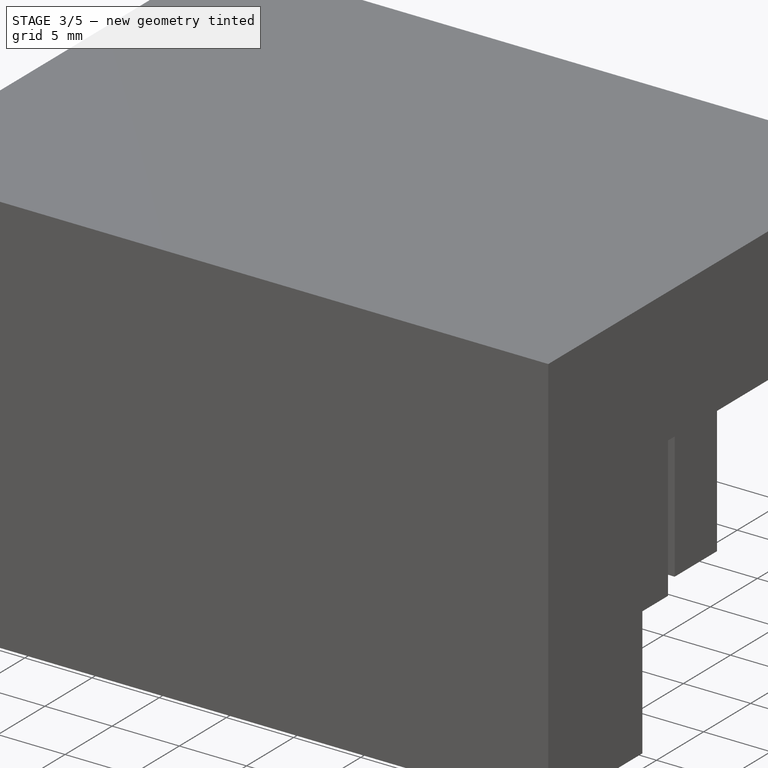
[diagram: stage 3 of 5 — iso view after this stage's code; geometry added in this stage tinted green]
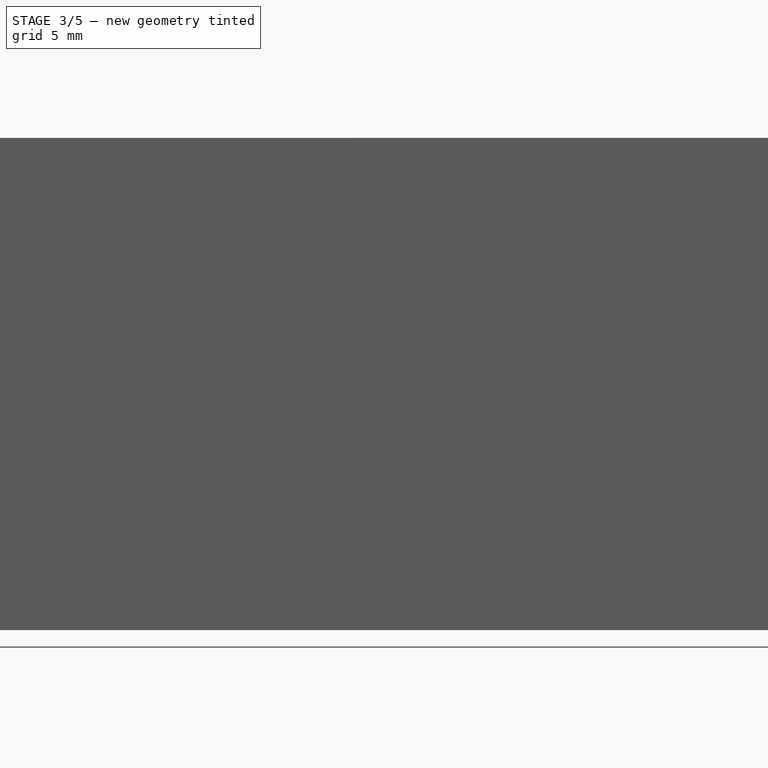
[diagram: stage 3 of 5 — front view after this stage's code; geometry added in this stage tinted green]
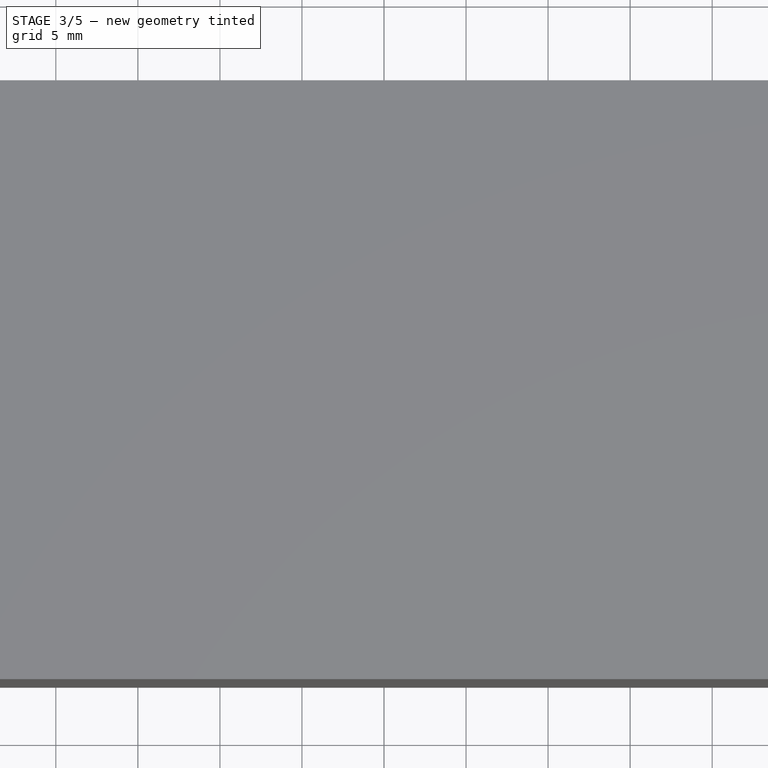
[diagram: stage 3 of 5 — top view after this stage's code; geometry added in this stage tinted green]
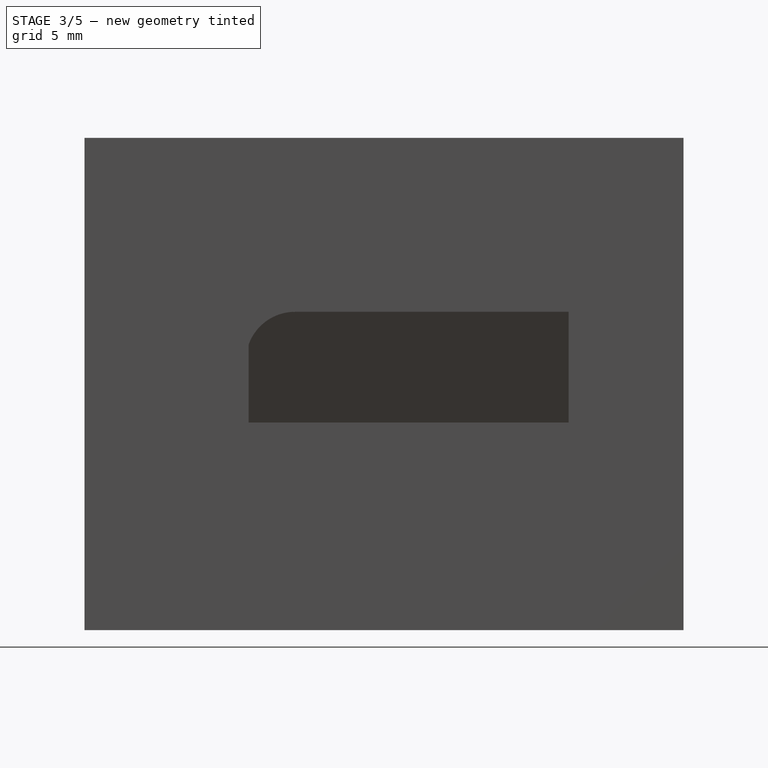
[diagram: stage 3 of 5 — right view after this stage's code; geometry added in this stage tinted green]
FEATURE [PartDesign::Body] Body  label="Locks"
  AllowCompound = true
  Group = -> [Sketch006,Pad,Sketch007,Pad002,Sketch008,Pocket004,Mirrored001]
  Origin = -> Origin
  Tip = -> Mirrored001
FEATURE [Sketcher::SketchObject] Sketch009  label="SideProfile"
  ArcFitTolerance = 1e-06
  AttachmentSupport = -> [YZ_Plane002]
  FullyConstrained = true
  MakeInternals = false
  MapMode = 5
  Placement = pos=(0,0,0) rot=(0.57735,0.57735,0.57735;2.0944rad)
  sketch-geometry (17):
    g0: LineSegment StartX=0 StartY=0 StartZ=0 EndX=0 EndY=1 EndZ=0
    g1: LineSegment StartX=0 StartY=1 StartZ=0 EndX=11 EndY=1 EndZ=0
    g2: LineSegment StartX=0 StartY=0 StartZ=0 EndX=24 EndY=0 EndZ=0
    g3: LineSegment StartX=11 StartY=1 StartZ=0 EndX=13 EndY=2 EndZ=0
    g4: LineSegment StartX=13 StartY=2 StartZ=0 EndX=22.5 EndY=2 EndZ=0
    g5: LineSegment StartX=22.5 StartY=2 StartZ=0 EndX=22.5 EndY=2.75 EndZ=0
    g6: LineSegment StartX=22.5 StartY=2.75 StartZ=0 EndX=23.25 EndY=2.75 EndZ=0
    g7: LineSegment StartX=23.25 StartY=2.75 StartZ=0 EndX=24 EndY=2 EndZ=0
    g8: LineSegment StartX=24 StartY=2 StartZ=0 EndX=24 EndY=0 EndZ=0
    g9: LineSegment StartX=0 StartY=6 StartZ=0 EndX=12 EndY=6 EndZ=0
    g10: LineSegment StartX=12 StartY=6 StartZ=0 EndX=14 EndY=3.75 EndZ=0
    g11: LineSegment StartX=14 StartY=3.75 StartZ=0 EndX=23.25 EndY=3.75 EndZ=0
    g12: LineSegment StartX=23.25 StartY=3.75 StartZ=0 EndX=24 EndY=4.75 EndZ=0
    g13: LineSegment StartX=24 StartY=4.75 StartZ=0 EndX=24 EndY=7 EndZ=0
    g14: LineSegment StartX=24 StartY=7 StartZ=0 EndX=0 EndY=7 EndZ=0
    g15: LineSegment StartX=0 StartY=7 StartZ=0 EndX=0 EndY=6 EndZ=0
    g16: LineSegment [constr] StartX=23.25 StartY=2.75 StartZ=0 EndX=23.25 EndY=3.75 EndZ=0
  constraints (51):
    c: Coincident(g0,g-1)
    c: PointOnObject(g0,g-2)
    c: Coincident(g1,g0)
    c: Horizontal(g1)
    c: Coincident(g2,g0)
    c: PointOnObject(g2,g-1)
    c: Coincident(g3,g1)
    c: Coincident(g4,g3)
    c: Horizontal(g4)
    c: Coincident(g5,g4)
    c: Vertical(g5)
    c: Coincident(g6,g5)
    c: Horizontal(g6)
    c: Coincident(g7,g6)
    c: Coincident(g8,g7)
    c: Vertical(g8)
    c: Coincident(g2,g8)
    c: DistanceX(g2,g2) = 24
    c: Distance(g0,g0) = 1
    c: Distance(g1,g1) = 11
    c: DistanceX(g0,g3) = 13
    c: DistanceY(g0,g3) = 2
    c: DistanceY(g8,g8) = 2
    c: DistanceY(g2,g6) = 2.75
    c: DistanceX(g6,g7) = 0.75
    c: PointOnObject(g9,g-2)
    c: Horizontal(g9)
    c: Coincident(g10,g9)
    c: Coincident(g11,g10)
    c: Horizontal(g11)
    c: Coincident(g12,g11)
    c: Coincident(g13,g12)
    c: Vertical(g13)
    c: Coincident(g14,g13)
    c: PointOnObject(g14,g-2)
    c: Horizontal(g14)
    c: Coincident(g15,g14)
    c: Coincident(g15,g9)
    c: Distance(g15,g15) = 1
    c: DistanceX(g9,g9) = 12
    c: DistanceX(g9,g10) = 14
    c: Vertical(g11,g6)
    c: DistanceY(g11,g12) = 1
    c: DistanceY(g10,g9) = 2.25
    c: Vertical(g13,g2)
    c: DistanceY(g0,g9) = 5
    c: DistanceX(g4,g4) = 9.5
    c: Coincident(g16,g6)
    c: Coincident(g16,g11)
    c: DistanceY(g16,g16) = 1
    c: DistanceY(g4,g11) = 1.75
FEATURE [PartDesign::Pad] Pad003  label="SideProfilePad"
  Direction = (1,0,0)
  Length = 10
  Length2 = 10
  Placement = pos=(0,0,0) rot=(1,1,1;2.0944rad)
  Profile = -> Sketch009
  ReferenceAxis = -> Sketch009 [N_Axis]
  Refine = true
  Suppressed = false
  Type = 0
FEATURE [Sketcher::SketchObject] Sketch010  label="Sides"
  ArcFitTolerance = 1e-06
  AttachmentSupport = -> [XY_Plane002]
  ExternalGeometry = -> [Pad003]
  FullyConstrained = true
  MakeInternals = false
  MapMode = 5
  sketch-geometry (8):
    g0: LineSegment StartX=-3e-15 StartY=24 StartZ=0 EndX=-3e-15 EndY=0 EndZ=0
    g1: LineSegment StartX=-3e-15 StartY=0 StartZ=0 EndX=1 EndY=0 EndZ=0
    g2: LineSegment StartX=1 StartY=0 StartZ=0 EndX=1 EndY=24 EndZ=0
    g3: LineSegment StartX=1 StartY=24 StartZ=0 EndX=-3e-15 EndY=24 EndZ=0
    g4: LineSegment StartX=10 StartY=24 StartZ=0 EndX=9 EndY=24 EndZ=0
    g5: LineSegment StartX=9 StartY=24 StartZ=0 EndX=9 EndY=0 EndZ=0
    g6: LineSegment StartX=9 StartY=0 StartZ=0 EndX=10 EndY=0 EndZ=0
    g7: LineSegment StartX=10 StartY=0 StartZ=0 EndX=10 EndY=24 EndZ=0
  constraints (22):
    c: Coincident(g0,g1)
    c: Coincident(g1,g2)
    c: Coincident(g2,g3)
    c: Coincident(g3,g0)
    c: Vertical(g0)
    c: Vertical(g2)
    c: Horizontal(g1)
    c: Horizontal(g3)
    c: Coincident(g0,g-3)
    c: PointOnObject(g1,g-1)
    c: Coincident(g4,g5)
    c: Coincident(g5,g6)
    c: Coincident(g6,g7)
    c: Coincident(g7,g4)
    c: Horizontal(g4)
    c: Horizontal(g6)
    c: Vertical(g5)
    c: Vertical(g7)
    c: Coincident(g4,g-4)
    c: PointOnObject(g5,g-1)
    c: Distance(g6,g6) = 1
    c: Distance(g1,g1) = 1
FEATURE [PartDesign::Pad] Pad004  label="SidesPad"
  BaseFeature = -> Pad003
  Direction = (0,0,1)
  Length = 6
  Length2 = 10
  Placement = pos=(0,0,0) rot=(1,1,1;2.0944rad)
  Profile = -> Sketch010
  ReferenceAxis = -> Sketch010 [N_Axis]
  Refine = true
  Suppressed = false
  Type = 0
FEATURE [Sketcher::SketchObject] Sketch011  label="Slot"
  ArcFitTolerance = 1e-06
  AttachmentSupport = -> [Pad003]
  ExternalGeometry = -> [Pad003]
  FullyConstrained = true
  MakeInternals = false
  MapMode = 5
  Placement = pos=(5.3e-15,24,0) rot=(0.57735,0.57735,0.57735;4.18879rad)
  sketch-geometry (6):
    g0: LineSegment StartX=0.75 StartY=6.5 StartZ=0 EndX=0.75 EndY=3.5 EndZ=0
    g1: LineSegment StartX=0.75 StartY=3.5 StartZ=0 EndX=2.75 EndY=3.5 EndZ=0
    g2: LineSegment StartX=2.75 StartY=3.5 StartZ=0 EndX=2.75 EndY=6.5 EndZ=0
    g3: LineSegment StartX=2.75 StartY=6.5 StartZ=0 EndX=0.75 EndY=6.5 EndZ=0
    g4: GeomPoint [constr] X=2.75 Y=5 Z=0
    g5: GeomPoint [constr] X=2.75 Y=5 Z=0
  constraints (13):
    c: Coincident(g0,g1)
    c: Coincident(g1,g2)
    c: Coincident(g2,g3)
    c: Coincident(g3,g0)
    c: Vertical(g0)
    c: Vertical(g2)
    c: Horizontal(g1)
    c: Horizontal(g3)
    c: Distance(g0,g0) = 3
    c: Symmetric(g1,g2,g4)
    c: Symmetric(g-3,g-3,g5)
    c: Coincident(g4,g5)
    c: Distance(g3,g3) = 2
FEATURE [PartDesign::Pocket] Pocket005  label="SlotPocket"
  BaseFeature = -> Pad004
  Direction = (0,-1,0)
  Length = 9.5
  Length2 = 5
  Placement = pos=(0,0,0) rot=(1,1,1;2.0944rad)
  Profile = -> Sketch011
  ReferenceAxis = -> Sketch011 [N_Axis]
  Refine = true
  Suppressed = false
  Type = 0
FEATURE [Sketcher::SketchObject] Sketch003  label="PointTrim"
  ArcFitTolerance = 1e-06
  AttachmentSupport = -> [XZ_Plane002]
  ExternalGeometry = -> [Pocket005]
  FullyConstrained = true
  MakeInternals = false
  MapMode = 5
  Placement = pos=(0,0,0) rot=(1,0,0;1.5708rad)
  sketch-geometry (7):
    g0: LineSegment StartX=1 StartY=5 StartZ=0 EndX=4.23 EndY=5 EndZ=0
    g1: LineSegment StartX=4.23 StartY=5 StartZ=0 EndX=5 EndY=3.75 EndZ=0
    g2: LineSegment StartX=5 StartY=3.75 StartZ=0 EndX=5.77 EndY=5 EndZ=0
    g3: LineSegment StartX=5.77 StartY=5 StartZ=0 EndX=9 EndY=5 EndZ=0
    g4: LineSegment StartX=1 StartY=5 StartZ=0 EndX=1 EndY=3.5 EndZ=0
    g5: LineSegment StartX=1 StartY=3.5 StartZ=0 EndX=9 EndY=3.5 EndZ=0
    g6: LineSegment StartX=9 StartY=3.5 StartZ=0 EndX=9 EndY=5 EndZ=0
  constraints (22):
    c: Horizontal(g0)
    c: Coincident(g1,g0)
    c: Coincident(g2,g1)
    c: Coincident(g3,g2)
    c: Horizontal(g3)
    c: DistanceY(g1,g0) = 1.25
    c: DistanceX(g0,g0) = 3.23
    c: Equal(g3,g0)
    c: Equal(g2,g1)
    c: Coincident(g4,g0)
    c: Vertical(g4)
    c: Coincident(g5,g4)
    c: Horizontal(g5)
    c: Coincident(g6,g5)
    c: Coincident(g6,g3)
    c: Vertical(g6)
    c: DistanceY(g6,g6) = 1.5
    c: Vertical(g0,g-3)
    c: Vertical(g3,g-3)
    c: Horizontal(g0,g2)
    c: DistanceY(g0,g-3) = 1
    c: DistanceY(g-4,g3) = 3
FEATURE [PartDesign::Pocket] Pocket006  label="PointPocket"
  BaseFeature = -> Pocket005
  Direction = (0,1,-2e-16)
  Length = 22.5
  Length2 = 5
  Placement = pos=(0,0,0) rot=(1,1,1;2.0944rad)
  Profile = -> Sketch003
  ReferenceAxis = -> Sketch003 [N_Axis]
  Refine = true
  Suppressed = false
  Type = 0
FEATURE [PartDesign::Body] Body005  label="Pin3"
  AllowCompound = false
  Group = -> [Clone002]
  Origin = -> Origin005
  Placement = pos=(5.15,-19.65,0) rot=(0,0,1;1.5708rad)
  Tip = -> Clone002
FEATURE [PartDesign::FeatureBase] Clone003
  BaseFeature = -> Body002
  Placement = pos=(0,0,2) rot=(1,0,0;1.5708rad)
  Suppressed = false
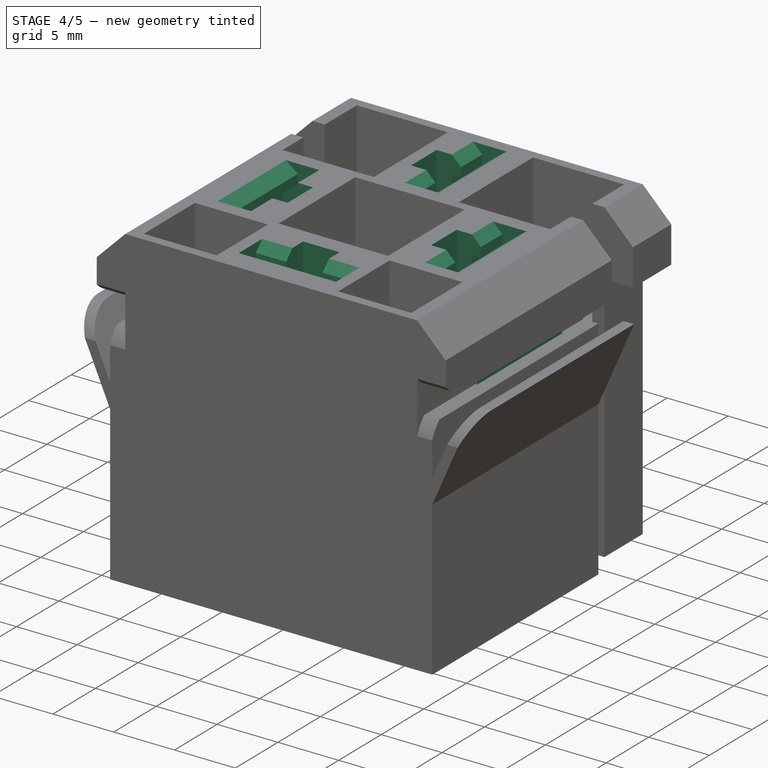
[diagram: stage 4 of 5 — iso view after this stage's code; geometry added in this stage tinted green]
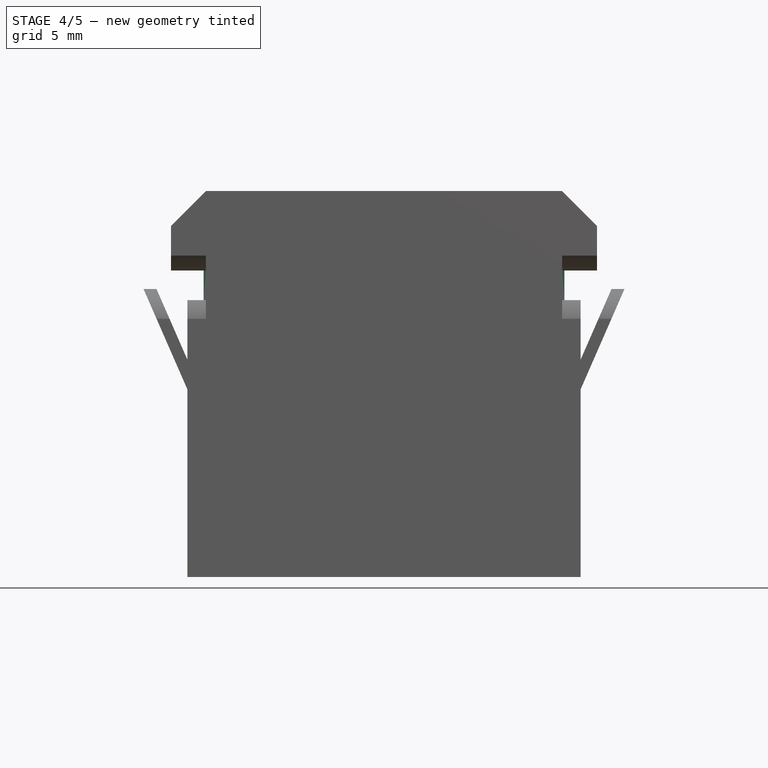
[diagram: stage 4 of 5 — front view after this stage's code; geometry added in this stage tinted green]
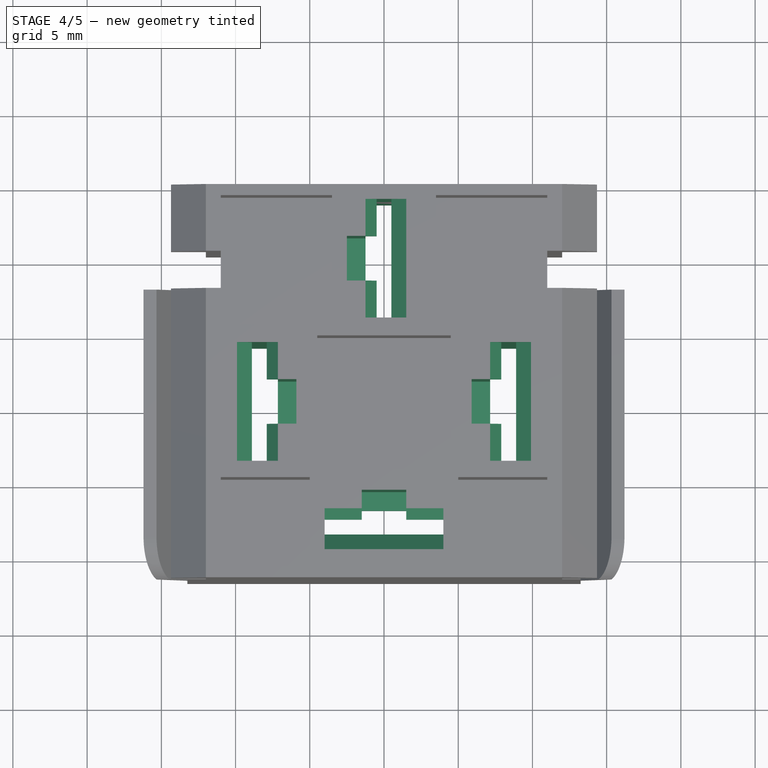
[diagram: stage 4 of 5 — top view after this stage's code; geometry added in this stage tinted green]
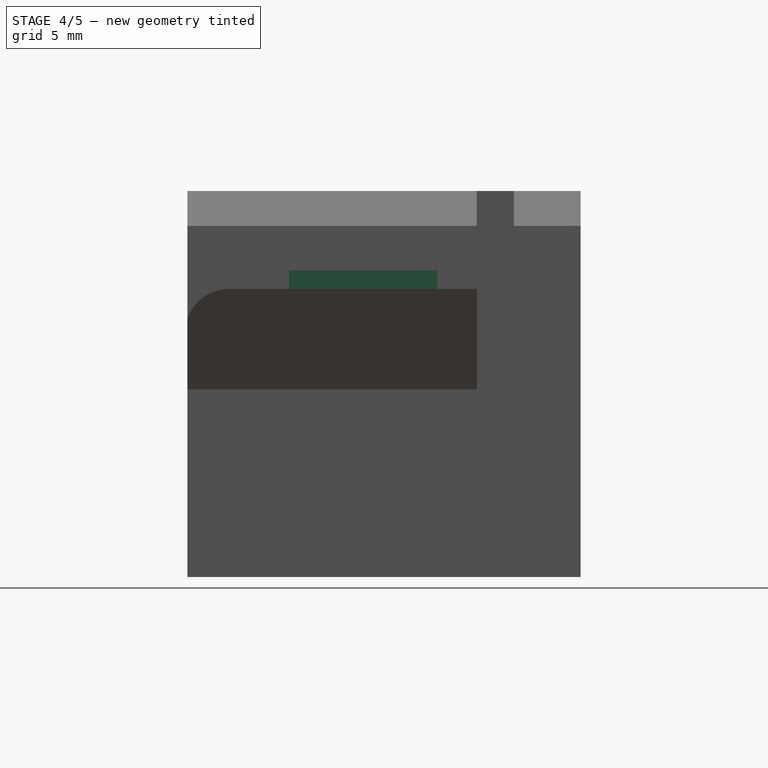
[diagram: stage 4 of 5 — right view after this stage's code; geometry added in this stage tinted green]
FEATURE [PartDesign::Body] Body002  label="PinHousing"
  AllowCompound = true
  Group = -> [Sketch009,Pad003,Sketch010,Pad004,Sketch011,Pocket005,Sketch003,Pocket006]
  Origin = -> Origin002
  Placement = pos=(0,0,2) rot=(1,0,0;1.5708rad)
  Tip = -> Pocket006
FEATURE [PartDesign::FeatureBase] Clone
  BaseFeature = -> Body002
  Placement = pos=(0,0,2) rot=(1,0,0;1.5708rad)
  Suppressed = false
FEATURE [PartDesign::Body] Body003  label="Pin1"
  AllowCompound = false
  Group = -> [Clone]
  Origin = -> Origin003
  Placement = pos=(-3.25,-10,0) rot=(0,0,1;1.5708rad)
  Tip = -> Clone
FEATURE [PartDesign::FeatureBase] Clone001
  BaseFeature = -> Body002
  Placement = pos=(0,0,2) rot=(1,0,0;1.5708rad)
  Suppressed = false
FEATURE [PartDesign::Body] Body004  label="Pin2"
  AllowCompound = false
  Group = -> [Clone001]
  Origin = -> Origin004
  Placement = pos=(-5.15,-9.65,0) rot=(0,0,-1;1.5708rad)
  Tip = -> Clone001
FEATURE [PartDesign::FeatureBase] Clone002
  BaseFeature = -> Body002
  Placement = pos=(0,0,2) rot=(1,0,0;1.5708rad)
  Suppressed = false
FEATURE [PartDesign::Body] Body001  label="MainBody"
  AllowCompound = false
  Group = -> [Sketch001,Pad001,Sketch,Pocket,Sketch002,Pocket001,DatumPlane,Sketch004,Pocket002,Mirrored,Sketch005,Pocket003,Sketch015,Pocket007]
  Origin = -> Origin001
  Tip = -> Pocket007
FEATURE [Part::MultiFuse] Fusion  label="FullRelayBottomWithOverlap"
  Refine = true
  Shapes = -> [Body001,Body003,Body004,Body005,Body006]
FEATURE [Part::Cut] Cut  label="RelaySocketTopClean"
  Base = -> Fusion
  Refine = true
  Tool = -> Fusion001
FEATURE [Part::MultiFuse] Fusion002  label="RelaySocketAllCleaned"
  Refine = true
  Shapes = -> [Cut,Extrude003]
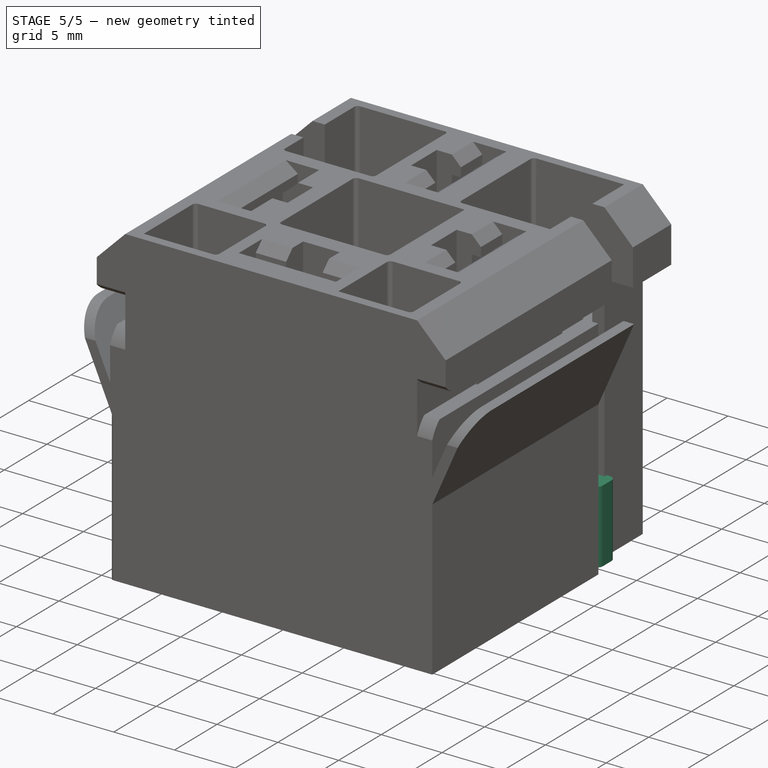
[diagram: stage 5 of 5 — iso view after this stage's code; geometry added in this stage tinted green]
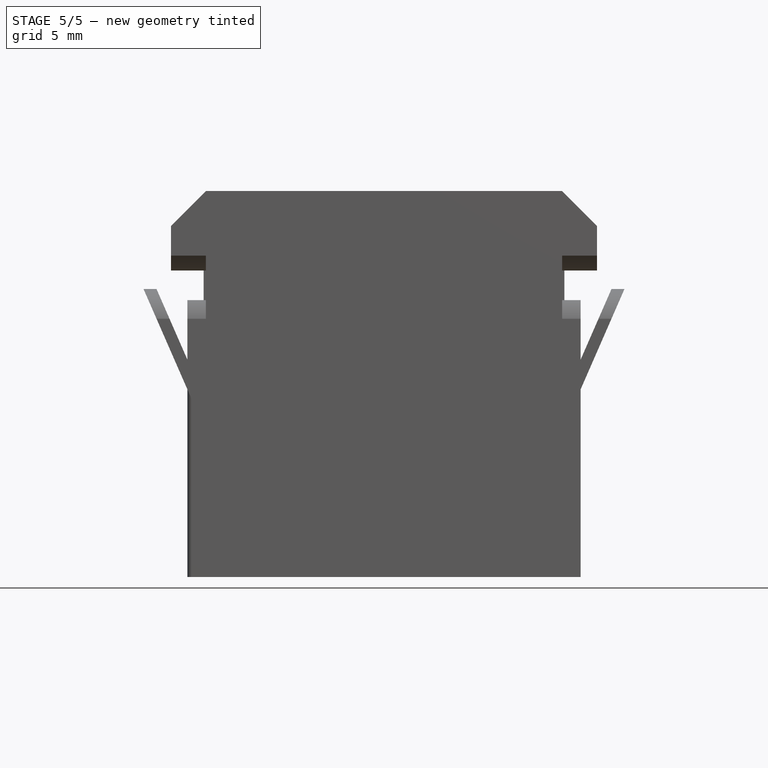
[diagram: stage 5 of 5 — front view after this stage's code; geometry added in this stage tinted green]
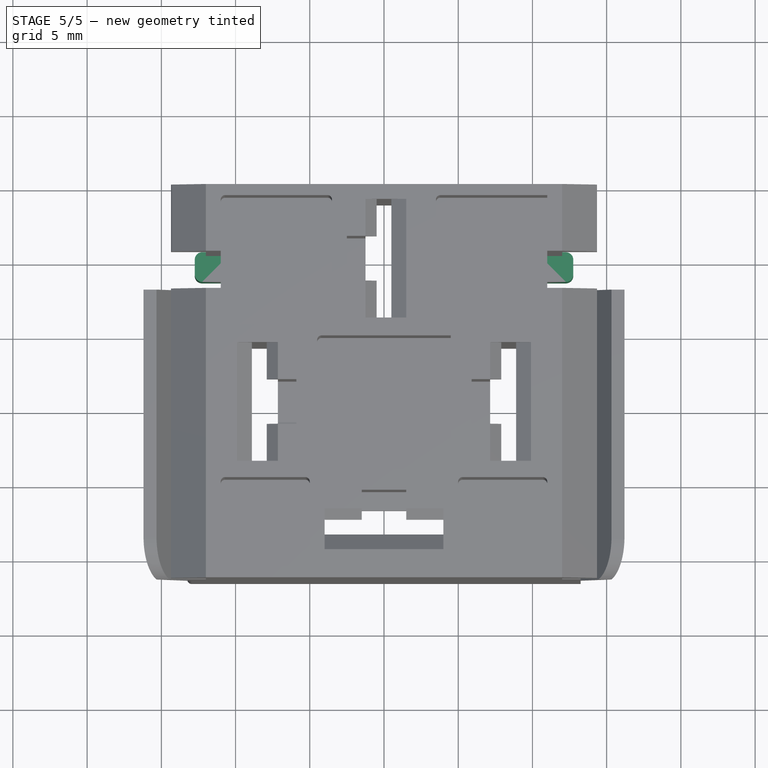
[diagram: stage 5 of 5 — top view after this stage's code; geometry added in this stage tinted green]
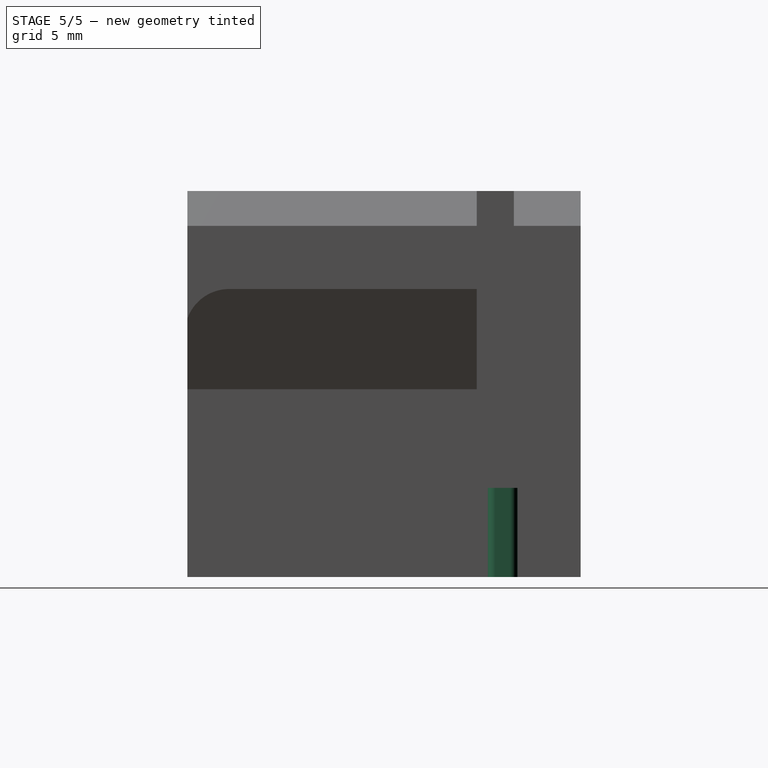
[diagram: stage 5 of 5 — right view after this stage's code; geometry added in this stage tinted green]
FEATURE [Sketcher::SketchObject] Sketch006
  ArcFitTolerance = 1e-06
  AttachmentSupport = -> [XY_Plane]
  FullyConstrained = true
  MakeInternals = false
  MapMode = 5
  sketch-geometry (20):
    g0: LineSegment StartX=-10.25 StartY=-1.75 StartZ=0 EndX=-10.25 EndY=-4.25 EndZ=0
    g1: LineSegment StartX=-9.25 StartY=-8.75 StartZ=0 EndX=-4.5 EndY=-8.75 EndZ=0
    g2: LineSegment StartX=-3.5 StartY=-7.75 StartZ=0 EndX=-3.5 EndY=-1.75 EndZ=0
    g3: LineSegment StartX=-4.5 StartY=-0.75 StartZ=0 EndX=-9.25 EndY=-0.75 EndZ=0
    g4: ArcOfCircle CenterX=-9.25 CenterY=-1.75 CenterZ=0 NormalX=0 NormalY=0 NormalZ=1 AngleXU=0 Radius=1 StartAngle=1.5708 EndAngle=3.14159
    g5: ArcOfCircle CenterX=-9.25 CenterY=-7.75 CenterZ=0 NormalX=0 NormalY=0 NormalZ=1 AngleXU=0 Radius=1 StartAngle=3.14158 EndAngle=4.71239
    g6: ArcOfCircle CenterX=-4.5 CenterY=-7.75 CenterZ=0 NormalX=0 NormalY=0 NormalZ=1 AngleXU=0 Radius=1 StartAngle=4.71239 EndAngle=6.28319
    g7: ArcOfCircle CenterX=-4.5 CenterY=-1.75 CenterZ=0 NormalX=0 NormalY=0 NormalZ=1 AngleXU=0 Radius=1 StartAngle=0 EndAngle=1.5708
    g8: GeomPoint [constr] X=-10.25 Y=-0.75 Z=0
    g9: GeomPoint [constr] X=-3.5 Y=-8.75 Z=0
    g10: GeomPoint X=-6.875 Y=-0.75 Z=0
    g11: GeomPoint X=-3.5 Y=-4.75 Z=0
    g12: LineSegment StartX=-12.75 StartY=-4.75 StartZ=0 EndX=-12.75 EndY=-5.75 EndZ=0
    g13: LineSegment StartX=-12.25 StartY=-6.25 StartZ=0 EndX=-10.25 EndY=-6.25 EndZ=0
    g14: LineSegment StartX=-10.25 StartY=-4.25 StartZ=0 EndX=-12.25 EndY=-4.25 EndZ=0
    g15: LineSegment StartX=-10.25 StartY=-6.25 StartZ=0 EndX=-10.25 EndY=-7.74999 EndZ=0
    g16: ArcOfCircle CenterX=-12.25 CenterY=-4.75 CenterZ=0 NormalX=0 NormalY=0 NormalZ=1 AngleXU=0 Radius=0.5 StartAngle=1.5708 EndAngle=3.14159
    g17: GeomPoint [constr] X=-12.75 Y=-4.25 Z=0
    g18: ArcOfCircle CenterX=-12.25 CenterY=-5.75 CenterZ=0 NormalX=0 NormalY=0 NormalZ=1 AngleXU=0 Radius=0.5 StartAngle=3.14159 EndAngle=4.71239
    g19: GeomPoint [constr] X=-12.75 Y=-6.25 Z=0
  constraints (50):
    c: Tangent(g0,g4) = -1.5708
    c: Coincident(g15,g5) = -1.5708
    c: Tangent(g1,g5) = -1.5708
    c: Tangent(g1,g6) = -1.5708
    c: Tangent(g2,g6) = -1.5708
    c: Tangent(g2,g7) = -1.5708
    c: Tangent(g3,g7) = -1.5708
    c: Tangent(g3,g4) = -1.5708
    c: Vertical(g0)
    c: Vertical(g2)
    c: Horizontal(g1)
    c: Horizontal(g3)
    c: Equal(g4,g5)
    c: Equal(g5,g6)
    c: Equal(g6,g7)
    c: PointOnObject(g8,g0)
    c: PointOnObject(g8,g3)
    c: PointOnObject(g9,g1)
    c: PointOnObject(g9,g2)
    c: Radius(g5) = 1
    c: DistanceX(g2,g-1) = 3.5
    c: DistanceY(g3,g-1) = 0.75
    c: Symmetric(g3,g3,g10)
    c: DistanceX(g0,g2) = 6.75
    c: DistanceY(g1,g3) = 8
    c: Symmetric(g2,g2,g11)
    c: DistanceX(g0,g2) = 6.75
    c: DistanceY(g1,g3) = 8
    c: Vertical(g12)
    c: Horizontal(g13)
    c: Horizontal(g14)
    c: PointOnObject(g13,g15)
    c: Distance(g14,g17) = 2.5
    c: Distance(g17,g19) = 2
    c: PointOnObject(g15,g13)
    c: Vertical(g13,g0)
    c: Coincident(g14,g0)
    c: PointOnObject(g17,g14)
    c: PointOnObject(g17,g12)
    c: Tangent(g14,g16) = -1.5708
    c: Tangent(g12,g16) = -1.5708
    c: PointOnObject(g19,g13)
    c: PointOnObject(g19,g12)
    c: Tangent(g13,g18) = -1.5708
    c: Tangent(g12,g18) = -1.5708
    c: Radius(g18) = 0.5
    c: Equal(g18,g16)
    c: DistanceY(g0,g3) = 3.5
    c: Vertical(g15)
    c: Vertical(g1,g3)
FEATURE [PartDesign::Pad] Pad
  Direction = (0,0,1)
  Length = 6
  Length2 = 10
  Profile = -> Sketch006
  ReferenceAxis = -> Sketch006 [N_Axis]
  Refine = true
  Suppressed = false
  Type = 0
FEATURE [Sketcher::SketchObject] Sketch007
  ArcFitTolerance = 1e-06
  AttachmentSupport = -> [Pad]
  ExternalGeometry = -> [Pad]
  FullyConstrained = true
  MakeInternals = false
  MapMode = 5
  Placement = pos=(0,0,6) rot=(0,0,1;0rad)
  sketch-geometry (8):
    g0: LineSegment StartX=-7.5 StartY=-0.75 StartZ=0 EndX=-7.5 EndY=-8.75 EndZ=0
    g1: LineSegment StartX=-7.5 StartY=-8.75 StartZ=0 EndX=-4.5 EndY=-8.75 EndZ=0
    g2: LineSegment StartX=-3.5 StartY=-7.75 StartZ=0 EndX=-3.5 EndY=-1.75 EndZ=0
    g3: LineSegment StartX=-4.5 StartY=-0.75 StartZ=0 EndX=-7.5 EndY=-0.75 EndZ=0
    g4: ArcOfCircle CenterX=-4.5 CenterY=-1.75 CenterZ=0 NormalX=0 NormalY=0 NormalZ=1 AngleXU=0 Radius=1 StartAngle=1e-16 EndAngle=1.5708
    g5: GeomPoint [constr] X=-3.5 Y=-0.75 Z=0
    g6: ArcOfCircle CenterX=-4.5 CenterY=-7.75 CenterZ=0 NormalX=0 NormalY=0 NormalZ=1 AngleXU=0 Radius=1 StartAngle=4.71239 EndAngle=6.28319
    g7: GeomPoint [constr] X=-3.5 Y=-8.75 Z=0
  constraints (20):
    c: Coincident(g0,g1)
    c: Coincident(g3,g0)
    c: Vertical(g0)
    c: Vertical(g2)
    c: Horizontal(g1)
    c: Horizontal(g3)
    c: PointOnObject(g0,g-3)
    c: PointOnObject(g7,g-4)
    c: PointOnObject(g0,g-5)
    c: DistanceX(g3,g5) = 4
    c: PointOnObject(g5,g3)
    c: PointOnObject(g5,g2)
    c: Tangent(g3,g4) = -1.5708
    c: Tangent(g2,g4) = -1.5708
    c: PointOnObject(g7,g2)
    c: PointOnObject(g7,g1)
    c: Tangent(g2,g6) = -1.5708
    c: Tangent(g1,g6) = -1.5708
    c: Radius(g4) = 1
    c: Equal(g6,g4)
FEATURE [PartDesign::Pad] Pad002
  BaseFeature = -> Pad
  Direction = (0,0,1)
  Length = 3
  Length2 = 10
  Profile = -> Sketch007
  ReferenceAxis = -> Sketch007 [N_Axis]
  Refine = true
  Suppressed = false
  Type = 0
FEATURE [Sketcher::SketchObject] Sketch008
  ArcFitTolerance = 1e-06
  AttachmentSupport = -> [Pad002]
  ExternalGeometry = -> [Pad002]
  FullyConstrained = true
  MakeInternals = false
  MapMode = 5
  Placement = pos=(-7.5,0,0) rot=(0.57735,-0.57735,-0.57735;2.0944rad)
  sketch-geometry (6):
    g0: ArcOfCircle CenterX=2.75 CenterY=7.25 CenterZ=0 NormalX=0 NormalY=0 NormalZ=1 AngleXU=0 Radius=0.5 StartAngle=1.5708 EndAngle=4.71239
    g1: ArcOfCircle CenterX=6.75 CenterY=7.25 CenterZ=0 NormalX=0 NormalY=0 NormalZ=1 AngleXU=0 Radius=0.5 StartAngle=4.71239 EndAngle=7.85398
    g2: LineSegment StartX=2.75 StartY=7.75 StartZ=0 EndX=6.75 EndY=7.75 EndZ=0
    g3: LineSegment StartX=2.75 StartY=6.75 StartZ=0 EndX=6.75 EndY=6.75 EndZ=0
    g4: GeomPoint X=4.75 Y=9 Z=0
    g5: GeomPoint X=4.75 Y=7.75 Z=0
  constraints (12):
    c: Tangent(g0,g2) = 1.5708
    c: Tangent(g0,g3) = -1.5708
    c: Tangent(g1,g2) = 1.5708
    c: Tangent(g1,g3) = -1.5708
    c: Equal(g0,g1)
    c: Horizontal(g3)
    c: DistanceX(g2,g2) = 4
    c: DistanceY(g0,g-3) = 1.75
    c: Distance(g1,g1) = 1
    c: Symmetric(g-3,g-3,g4)
    c: Symmetric(g2,g2,g5)
    c: Vertical(g5,g4)
FEATURE [PartDesign::Pocket] Pocket004
  BaseFeature = -> Pad002
  Direction = (1,0,0)
  Length = 1.5
  Length2 = 5
  Profile = -> Sketch008
  ReferenceAxis = -> Sketch008 [N_Axis]
  Refine = true
  Suppressed = false
  Type = 0
FEATURE [PartDesign::Mirrored] Mirrored001
  BaseFeature = -> Pocket004
  MirrorPlane = -> YZ_Plane
  Refine = true
  Suppressed = false
  TransformMode = 1
FEATURE [Part::Compound] Compound  label="FinalSocketNeedsEdging"
  Links = -> [Fusion002]
FEATURE [Part::Fillet] Fillet
  Base = -> Compound
  EdgeLinks = -> Compound [Edge305,Edge105,Edge137,Edge139,Edge141,Edge143,Edge154,Edge166,Edge464,Edge170,Edge173,Edge174,Edge197,Edge197,Edge200,Edge202,Edge225,Edge227,Edge239,Edge230]
  Edges = 20 edges r=0.3: [Edge305,Edge105,Edge137,Edge139,Edge141,Edge143,Edge154,Edge166,Edge464,Edge170,Edge173,Edge174,Edge197,Edge197,Edge200,Edge202,Edge225,Edge227,Edge239,Edge230]
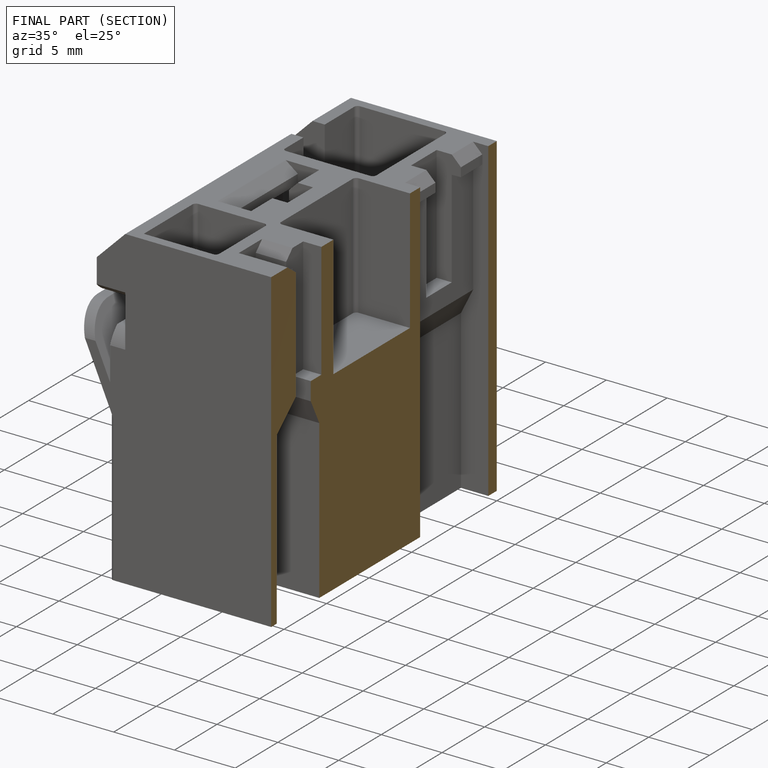
[diagram: finished part — half-section view (interior)]
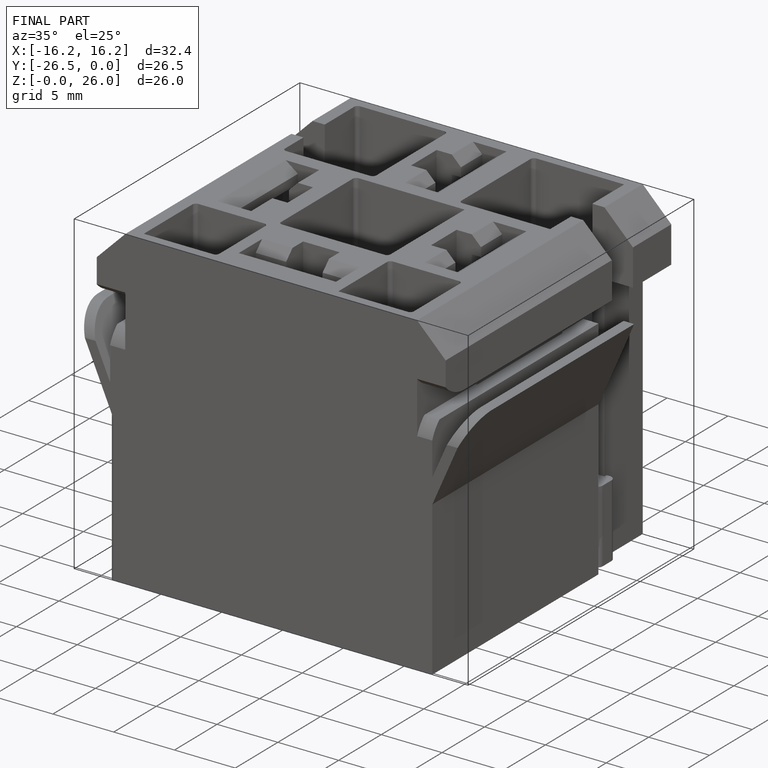
[diagram: finished part — iso view with bounding-box wireframe]
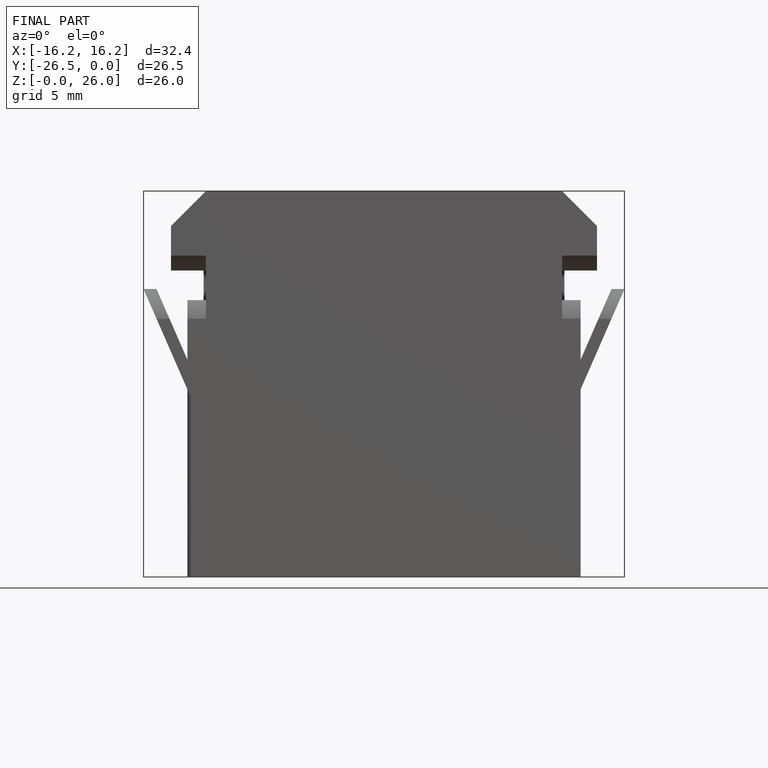
[diagram: finished part — front view with bounding-box wireframe]
